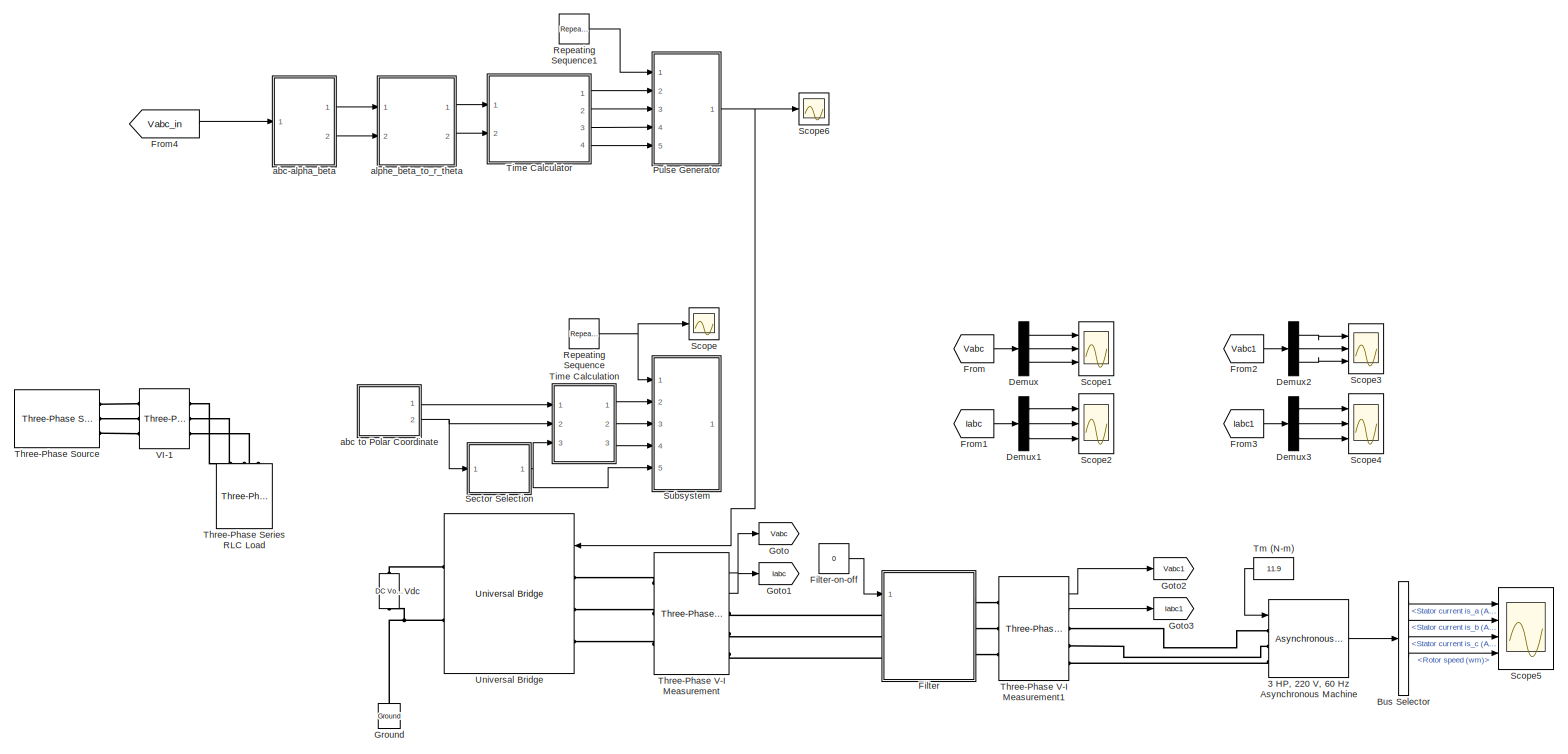
[diagram: root canvas - part 1/2, most of the canvas]
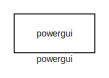
[diagram: root canvas - part 2/2, middle left region]
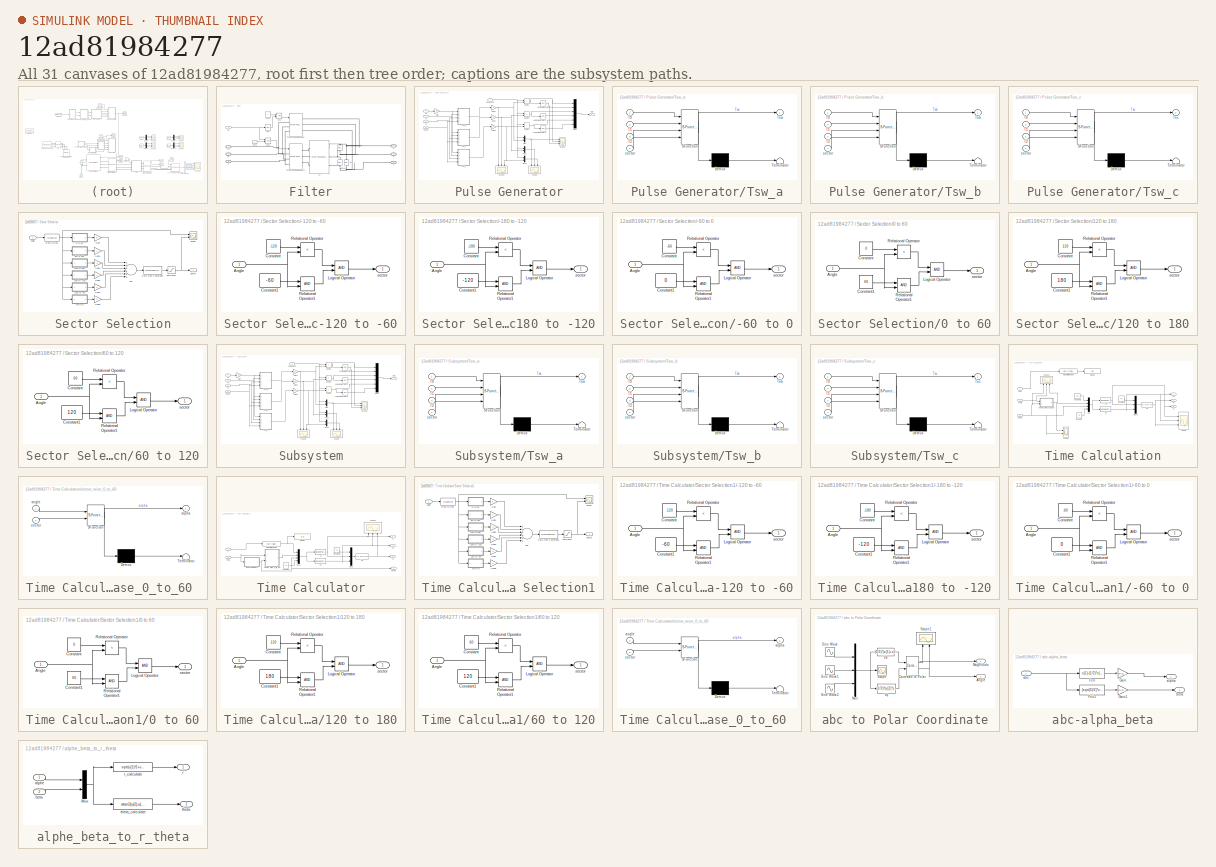
[diagram: thumbnail index - all 31 canvases of the model, root first then tree order]
MODEL slx_12ad81984277
KIND model
CONFIG AbsTol = auto
CONFIG EnableMultiTasking = off
CONFIG FixedStep = 1/252000
CONFIG MaxStep = 1e-4
CONFIG MinStep = auto
CONFIG RelTol = 1e-4
CONFIG SampleTimeConstraint = Unconstrained
CONFIG Solver = FixedStepAuto
CONFIG SolverName = FixedStepAuto
CONFIG StartTime = 0
CONFIG StopTime = 100e-3
BLOCK [Reference] 3 HP, 220 V, 60 Hz Asynchronous Machine  REF=powerlib/Machines/Asynchronous Machine
SI Units
  Ports = [1, 1, 0, 0, 0, 3]
  SourceBlock = powerlib/Machines/Asynchronous Machine\nSI Units
  SourceProductBaseCode = PS
  SourceProductName = Simscape Power Systems
  SourceType = Asynchronous Machine
BLOCK [BusSelector] Bus Selector
  OutputAsBus = off
  OutputSignals = Stator measurements.Stator current is_a (A),Stator measurements.Stator current is_b (A),Stator measurements.Stator current is_c (A),Mechanical.Rotor speed (wm),Mechanical.Electromagnetic torque Te (N*m)
  Ports = [1, 5]
BLOCK [Demux] Demux
  DisplayOption = bar
  Outputs = 3
  Ports = [1, 3]
BLOCK [Demux] Demux1
  DisplayOption = bar
  Outputs = 3
  Ports = [1, 3]
BLOCK [Demux] Demux2
  DisplayOption = bar
  Outputs = 3
  Ports = [1, 3]
BLOCK [Demux] Demux3
  DisplayOption = bar
  Outputs = 3
  Ports = [1, 3]
BLOCK [SubSystem] Filter
  Ports = [1, 0, 0, 0, 0, 3, 3]
  RequestExecContextInheritance = off
  Variant = off
BLOCK [Constant] Filter-on-off
  Value = 0
BLOCK [PMIOPort] Filter/A
  Port = 2
  Side = Left
BLOCK [PMIOPort] Filter/B
  Port = 3
  Side = Left
BLOCK [PMIOPort] Filter/C
  Port = 5
  Side = Left
BLOCK [Reference] Filter/C1  REF=powerlib/Elements/Series RLC Branch
  Ports = [0, 0, 0, 0, 0, 1, 1]
  SourceBlock = powerlib/Elements/Series RLC Branch
  SourceProductBaseCode = PS
  SourceProductName = Simscape Power Systems
  SourceType = Series RLC Branch
BLOCK [Reference] Filter/C2  REF=powerlib/Elements/Series RLC Branch
  Ports = [0, 0, 0, 0, 0, 1, 1]
  SourceBlock = powerlib/Elements/Series RLC Branch
  SourceProductBaseCode = PS
  SourceProductName = Simscape Power Systems
  SourceType = Series RLC Branch
BLOCK [Reference] Filter/C3  REF=powerlib/Elements/Series RLC Branch
  Ports = [0, 0, 0, 0, 0, 1, 1]
  SourceBlock = powerlib/Elements/Series RLC Branch
  SourceProductBaseCode = PS
  SourceProductName = Simscape Power Systems
  SourceType = Series RLC Branch
BLOCK [Constant] Filter/Con2
BLOCK [Constant] Filter/Con3
BLOCK [Inport] Filter/In1
  IconDisplay = Port number
BLOCK [Reference] Filter/L3  REF=powerlib/Elements/Three-Phase
Series RLC Branch
  AttributesFormatString = \n
  Ports = [0, 0, 0, 0, 0, 3, 3]
  SourceBlock = powerlib/Elements/Three-Phase\nSeries RLC Branch
  SourceProductBaseCode = PS
  SourceProductName = Simscape Power Systems
  SourceType = Three-Phase Series RLC Branch
BLOCK [Reference] Filter/Three-Phase Breaker  REF=powerlib/Elements/Three-Phase Breaker
  Ports = [1, 0, 0, 0, 0, 3, 3]
  SourceBlock = powerlib/Elements/Three-Phase Breaker
  SourceProductBaseCode = PS
  SourceProductName = Simscape Power Systems
  SourceType = Three-Phase Breaker
BLOCK [Reference] Filter/Three-Phase Breaker1  REF=powerlib/Elements/Three-Phase Breaker
  Ports = [1, 0, 0, 0, 0, 3, 3]
  SourceBlock = powerlib/Elements/Three-Phase Breaker
  SourceProductBaseCode = PS
  SourceProductName = Simscape Power Systems
  SourceType = Three-Phase Breaker
BLOCK [PMIOPort] Filter/a
  Port = 1
  Side = Right
BLOCK [Logic] Filter/and
  AllPortsSameDT = off
  OutDataTypeStr = boolean
  Ports = [2, 1]
BLOCK [Logic] Filter/and1
  AllPortsSameDT = off
  OutDataTypeStr = boolean
  Ports = [2, 1]
BLOCK [PMIOPort] Filter/b
  Port = 4
  Side = Right
BLOCK [PMIOPort] Filter/c
  Port = 6
  Side = Right
BLOCK [Logic] Filter/not
  AllPortsSameDT = off
  Operator = NOT
  OutDataTypeStr = boolean
  Ports = [1, 1]
BLOCK [From] From
  GotoTag = Vabc
BLOCK [From] From1
  GotoTag = Iabc
BLOCK [From] From2
  GotoTag = Vabc1
BLOCK [From] From3
  GotoTag = Iabc1
BLOCK [From] From4
  GotoTag = Vabc_in
  TagVisibility = global
BLOCK [Goto] Goto
  GotoTag = Vabc
BLOCK [Goto] Goto1
  GotoTag = Iabc
BLOCK [Goto] Goto2
  GotoTag = Vabc1
BLOCK [Goto] Goto3
  GotoTag = Iabc1
BLOCK [Reference] Ground  REF=powerlib/Elements/Ground
  Ports = [0, 0, 0, 0, 0, 1]
  SourceBlock = powerlib/Elements/Ground
  SourceProductBaseCode = PS
  SourceProductName = Simscape Power Systems
  SourceType = Ground
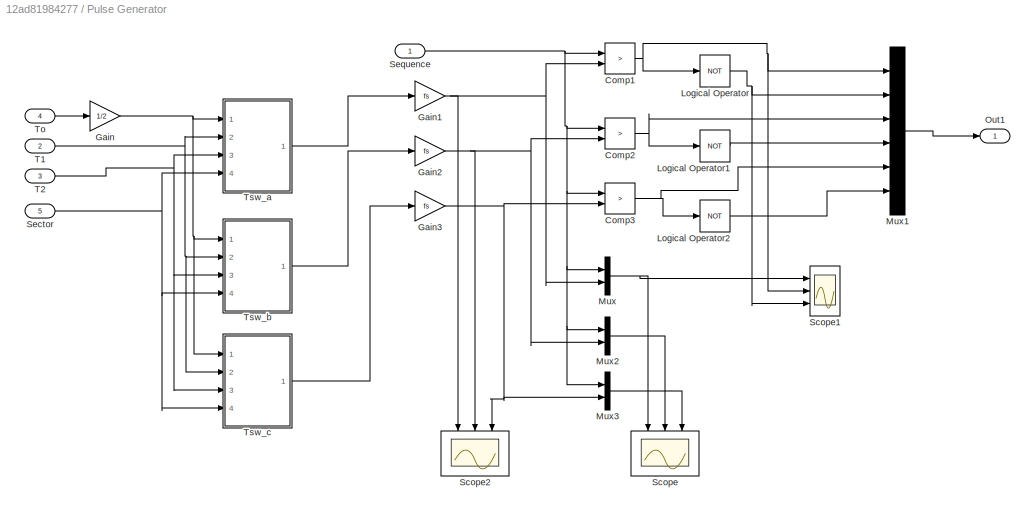
BLOCK [SubSystem] Pulse Generator
  Ports = [5, 1]
  RequestExecContextInheritance = off
  Variant = off
BLOCK [RelationalOperator] Pulse Generator/Comp1
  InputSameDT = off
  Operator = >
  OutDataTypeStr = boolean
  Ports = [2, 1]
  RndMeth = Simplest
BLOCK [RelationalOperator] Pulse Generator/Comp2
  InputSameDT = off
  Operator = >
  OutDataTypeStr = boolean
  Ports = [2, 1]
  RndMeth = Simplest
BLOCK [RelationalOperator] Pulse Generator/Comp3
  InputSameDT = off
  Operator = >
  OutDataTypeStr = boolean
  Ports = [2, 1]
  RndMeth = Simplest
BLOCK [Gain] Pulse Generator/Gain
  Gain = 1/2
  OutDataTypeStr = Inherit: Inherit via internal rule
  ParamDataTypeStr = Inherit: Inherit via internal rule
  SaturateOnIntegerOverflow = off
BLOCK [Gain] Pulse Generator/Gain1
  Gain = fs
  OutDataTypeStr = Inherit: Inherit via internal rule
  ParamDataTypeStr = Inherit: Inherit via internal rule
  SaturateOnIntegerOverflow = off
BLOCK [Gain] Pulse Generator/Gain2
  Gain = fs
  OutDataTypeStr = Inherit: Inherit via internal rule
  ParamDataTypeStr = Inherit: Inherit via internal rule
  SaturateOnIntegerOverflow = off
BLOCK [Gain] Pulse Generator/Gain3
  Gain = fs
  OutDataTypeStr = Inherit: Inherit via internal rule
  ParamDataTypeStr = Inherit: Inherit via internal rule
  SaturateOnIntegerOverflow = off
BLOCK [Logic] Pulse Generator/Logical Operator
  AllPortsSameDT = off
  Operator = NOT
  OutDataTypeStr = boolean
  Ports = [1, 1]
BLOCK [Logic] Pulse Generator/Logical Operator1
  AllPortsSameDT = off
  Operator = NOT
  OutDataTypeStr = boolean
  Ports = [1, 1]
BLOCK [Logic] Pulse Generator/Logical Operator2
  AllPortsSameDT = off
  Operator = NOT
  OutDataTypeStr = boolean
  Ports = [1, 1]
BLOCK [Mux] Pulse Generator/Mux
  DisplayOption = bar
  Inputs = 2
  Ports = [2, 1]
BLOCK [Mux] Pulse Generator/Mux1
  DisplayOption = bar
  Inputs = 6
  Ports = [6, 1]
BLOCK [Mux] Pulse Generator/Mux2
  DisplayOption = bar
  Inputs = 2
  Ports = [2, 1]
BLOCK [Mux] Pulse Generator/Mux3
  DisplayOption = bar
  Inputs = 2
  Ports = [2, 1]
BLOCK [Outport] Pulse Generator/Out1
  IconDisplay = Port number
BLOCK [Scope] Pulse Generator/Scope
  NumInputPorts = 3
  Ports = [3]
  ScopeSpecificationString = Simulink.scopes.TimeScopeBlockCfg('CurrentConfiguration', extmgr.ConfigurationSet(extmgr.Configuration('Core','General UI',true),extmgr.Configuration('Core','Source UI',true),extmgr.Configuration('Sources','WiredSimulink',true,'DataLoggingVariableName','ScopeData1'),extmgr.Configuration('Visuals','Time Domain',true,'SerializedDisplays',{struct('MinYLimReal','-0.08299','MaxYLimReal','0.99971','YLab...<+2790ch>
BLOCK [Scope] Pulse Generator/Scope1
  NumInputPorts = 3
  Ports = [3]
  ScopeSpecificationString = Simulink.scopes.TimeScopeBlockCfg('CurrentConfiguration', extmgr.ConfigurationSet(extmgr.Configuration('Core','General UI',true),extmgr.Configuration('Core','Source UI',true),extmgr.Configuration('Sources','WiredSimulink',true,'DataLoggingVariableName','ScopeData2'),extmgr.Configuration('Visuals','Time Domain',true,'SerializedDisplays',{struct('MinYLimReal','-0.12302','MaxYLimReal','1.10714','YLab...<+2748ch>
BLOCK [Scope] Pulse Generator/Scope2
  NumInputPorts = 3
  Ports = [3]
  ScopeSpecificationString = Simulink.scopes.TimeScopeBlockCfg('CurrentConfiguration', extmgr.ConfigurationSet(extmgr.Configuration('Core','General UI',true),extmgr.Configuration('Core','Source UI',true),extmgr.Configuration('Sources','WiredSimulink',true,'DataLoggingVariableName','ScopeData3'),extmgr.Configuration('Visuals','Time Domain',true,'SerializedDisplays',{struct('MinYLimReal','-0.05988','MaxYLimReal','1.05988','YLab...<+2738ch>
BLOCK [Inport] Pulse Generator/Sector
  IconDisplay = Port number
  Port = 5
BLOCK [Inport] Pulse Generator/Sequence
  IconDisplay = Port number
BLOCK [Inport] Pulse Generator/T1
  IconDisplay = Port number
  Port = 2
BLOCK [Inport] Pulse Generator/T2
  IconDisplay = Port number
  Port = 3
BLOCK [Inport] Pulse Generator/To
  IconDisplay = Port number
  Port = 4
BLOCK [SubSystem] Pulse Generator/Tsw_a
  ErrorFcn = Stateflow.Translate.translate
  PermitHierarchicalResolution = ExplicitOnly
  Ports = [4, 1]
  RequestExecContextInheritance = off
  SFBlockType = MATLAB Function
  TreatAsAtomicUnit = on
  Variant = off
BLOCK [Demux] Pulse Generator/Tsw_a/ Demux 
  Outputs = 1
  Ports = [1, 1]
BLOCK [S-Function] Pulse Generator/Tsw_a/ SFunction 
  EnableBusSupport = on
  FunctionName = sf_sfun
  PortCounts = [4 2]
  Ports = [4, 2]
  SFcnIsStateOwnerBlock = off
  SFunctionDeploymentMode = off
  Tag = Stateflow S-Function svpwm_v3 6
BLOCK [Terminator] Pulse Generator/Tsw_a/ Terminator 
BLOCK [Inport] Pulse Generator/Tsw_a/T0
  IconDisplay = Port number
BLOCK [Inport] Pulse Generator/Tsw_a/T1
  IconDisplay = Port number
  Port = 2
BLOCK [Inport] Pulse Generator/Tsw_a/T2
  IconDisplay = Port number
  Port = 3
BLOCK [Outport] Pulse Generator/Tsw_a/Tsa
  IconDisplay = Port number
BLOCK [Inport] Pulse Generator/Tsw_a/sector
  IconDisplay = Port number
  Port = 4
BLOCK [SubSystem] Pulse Generator/Tsw_b
  ErrorFcn = Stateflow.Translate.translate
  PermitHierarchicalResolution = ExplicitOnly
  Ports = [4, 1]
  RequestExecContextInheritance = off
  SFBlockType = MATLAB Function
  TreatAsAtomicUnit = on
  Variant = off
BLOCK [Demux] Pulse Generator/Tsw_b/ Demux 
  Outputs = 1
  Ports = [1, 1]
BLOCK [S-Function] Pulse Generator/Tsw_b/ SFunction 
  EnableBusSupport = on
  FunctionName = sf_sfun
  PortCounts = [4 2]
  Ports = [4, 2]
  SFcnIsStateOwnerBlock = off
  SFunctionDeploymentMode = off
  Tag = Stateflow S-Function svpwm_v3 7
BLOCK [Terminator] Pulse Generator/Tsw_b/ Terminator 
BLOCK [Inport] Pulse Generator/Tsw_b/T0
  IconDisplay = Port number
BLOCK [Inport] Pulse Generator/Tsw_b/T1
  IconDisplay = Port number
  Port = 2
BLOCK [Inport] Pulse Generator/Tsw_b/T2
  IconDisplay = Port number
  Port = 3
BLOCK [Outport] Pulse Generator/Tsw_b/Tsb
  IconDisplay = Port number
BLOCK [Inport] Pulse Generator/Tsw_b/sector
  IconDisplay = Port number
  Port = 4
BLOCK [SubSystem] Pulse Generator/Tsw_c
  ErrorFcn = Stateflow.Translate.translate
  PermitHierarchicalResolution = ExplicitOnly
  Ports = [4, 1]
  RequestExecContextInheritance = off
  SFBlockType = MATLAB Function
  TreatAsAtomicUnit = on
  Variant = off
BLOCK [Demux] Pulse Generator/Tsw_c/ Demux 
  Outputs = 1
  Ports = [1, 1]
BLOCK [S-Function] Pulse Generator/Tsw_c/ SFunction 
  EnableBusSupport = on
  FunctionName = sf_sfun
  PortCounts = [4 2]
  Ports = [4, 2]
  SFcnIsStateOwnerBlock = off
  SFunctionDeploymentMode = off
  Tag = Stateflow S-Function svpwm_v3 8
BLOCK [Terminator] Pulse Generator/Tsw_c/ Terminator 
BLOCK [Inport] Pulse Generator/Tsw_c/T0
  IconDisplay = Port number
BLOCK [Inport] Pulse Generator/Tsw_c/T1
  IconDisplay = Port number
  Port = 2
BLOCK [Inport] Pulse Generator/Tsw_c/T2
  IconDisplay = Port number
  Port = 3
BLOCK [Outport] Pulse Generator/Tsw_c/Tsc
  IconDisplay = Port number
BLOCK [Inport] Pulse Generator/Tsw_c/sector
  IconDisplay = Port number
  Port = 4
BLOCK [Reference] Repeating Sequence  REF=simulink/Sources/Repeating
Sequence
  Ports = [0, 1]
  SourceBlock = simulink/Sources/Repeating\nSequence
  SourceProductBaseCode = SL
  SourceProductName = Simulink
  SourceType = Repeating table
BLOCK [Reference] Repeating Sequence1  REF=simulink/Sources/Repeating
Sequence
  Ports = [0, 1]
  SourceBlock = simulink/Sources/Repeating\nSequence
  SourceProductBaseCode = SL
  SourceProductName = Simulink
  SourceType = Repeating table
BLOCK [Scope] Scope
  NumInputPorts = 1
  Ports = [1]
  ScopeSpecificationString = Simulink.scopes.TimeScopeBlockCfg('CurrentConfiguration', extmgr.ConfigurationSet(extmgr.Configuration('Core','General UI',true),extmgr.Configuration('Core','Source UI',true),extmgr.Configuration('Sources','WiredSimulink',true,'DataLoggingVariableName','ScopeData2'),extmgr.Configuration('Visuals','Time Domain',true,'SerializedDisplays',{struct('MinYLimReal','-0.12302','MaxYLimReal','1.10714','YLab...<+1404ch>
BLOCK [Scope] Scope1
  NumInputPorts = 3
  Ports = [3]
  ScopeSpecificationString = Simulink.scopes.TimeScopeBlockCfg('CurrentConfiguration', extmgr.ConfigurationSet(extmgr.Configuration('Core','General UI',true),extmgr.Configuration('Core','Source UI',true),extmgr.Configuration('Sources','WiredSimulink',true,'DataLoggingVariableName','ScopeData4'),extmgr.Configuration('Visuals','Time Domain',true,'SerializedDisplays',{struct('MinYLimReal','-679.93966','MaxYLimReal','406.73435','...<+2782ch>
BLOCK [Scope] Scope2
  NumInputPorts = 3
  Ports = [3]
  ScopeSpecificationString = Simulink.scopes.TimeScopeBlockCfg('CurrentConfiguration', extmgr.ConfigurationSet(extmgr.Configuration('Core','General UI',true),extmgr.Configuration('Core','Source UI',true),extmgr.Configuration('Sources','WiredSimulink',true,'DataLoggingVariableName','ScopeData5'),extmgr.Configuration('Visuals','Time Domain',true,'SerializedDisplays',{struct('MinYLimReal','-6656.18374','MaxYLimReal','2456.3583',...<+2773ch>
BLOCK [Scope] Scope3
  NumInputPorts = 3
  Ports = [3]
  ScopeSpecificationString = Simulink.scopes.TimeScopeBlockCfg('CurrentConfiguration', extmgr.ConfigurationSet(extmgr.Configuration('Core','General UI',true),extmgr.Configuration('Core','Source UI',true),extmgr.Configuration('Sources','WiredSimulink',true,'DataLoggingVariableName','ScopeData1'),extmgr.Configuration('Visuals','Time Domain',true,'SerializedDisplays',{struct('MinYLimReal','-1842.56393','MaxYLimReal','2409.35659'...<+2873ch>
BLOCK [Scope] Scope4
  NumInputPorts = 3
  Ports = [3]
  ScopeSpecificationString = Simulink.scopes.TimeScopeBlockCfg('CurrentConfiguration', extmgr.ConfigurationSet(extmgr.Configuration('Core','General UI',true),extmgr.Configuration('Core','Source UI',true),extmgr.Configuration('Sources','WiredSimulink',true,'DataLoggingVariableName','ScopeData2'),extmgr.Configuration('Visuals','Time Domain',true,'SerializedDisplays',{struct('MinYLimReal','-257.14572','MaxYLimReal','278.2944','Y...<+1451ch>
BLOCK [Scope] Scope5
  NumInputPorts = 4
  Ports = [4]
  ScopeSpecificationString = Simulink.scopes.TimeScopeBlockCfg('CurrentConfiguration', extmgr.ConfigurationSet(extmgr.Configuration('Core','General UI',true),extmgr.Configuration('Core','Source UI',true),extmgr.Configuration('Sources','WiredSimulink',true,'DataLoggingVariableName','ScopeData4'),extmgr.Configuration('Visuals','Time Domain',true,'SerializedDisplays',{struct('MinYLimReal','-356.03539','MaxYLimReal','201.76393','...<+3543ch>
BLOCK [Scope] Scope6
  NumInputPorts = 1
  Ports = [1]
  ScopeSpecificationString = Simulink.scopes.TimeScopeBlockCfg('CurrentConfiguration', extmgr.ConfigurationSet(extmgr.Configuration('Core','General UI',true),extmgr.Configuration('Core','Source UI',true),extmgr.Configuration('Sources','WiredSimulink',true,'DataLoggingVariableName','ScopeData1'),extmgr.Configuration('Visuals','Time Domain',true,'SerializedDisplays',{struct('MinYLimReal','-0.125','MaxYLimReal','1.125','YLabelRe...<+4988ch>
BLOCK [SubSystem] Sector Selection
  Ports = [1, 1]
  RequestExecContextInheritance = off
  Variant = off
BLOCK [SubSystem] Sector Selection/-120 to -60
  Ports = [1, 1]
  RequestExecContextInheritance = off
  Variant = off
BLOCK [Inport] Sector Selection/-120 to -60/Angle
  IconDisplay = Port number
BLOCK [Constant] Sector Selection/-120 to -60/Constant
  Value = -120
BLOCK [Constant] Sector Selection/-120 to -60/Constant1
  Value = -60
BLOCK [Logic] Sector Selection/-120 to -60/Logical Operator
  AllPortsSameDT = off
  OutDataTypeStr = boolean
  Ports = [2, 1]
BLOCK [RelationalOperator] Sector Selection/-120 to -60/Relational Operator
  InputSameDT = off
  Operator = <
  OutDataTypeStr = boolean
  Ports = [2, 1]
  RndMeth = Simplest
BLOCK [RelationalOperator] Sector Selection/-120 to -60/Relational Operator1
  InputSameDT = off
  OutDataTypeStr = boolean
  Ports = [2, 1]
  RndMeth = Simplest
BLOCK [Outport] Sector Selection/-120 to -60/sector
  IconDisplay = Port number
BLOCK [SubSystem] Sector Selection/-180 to -120
  Ports = [1, 1]
  RequestExecContextInheritance = off
  Variant = off
BLOCK [Inport] Sector Selection/-180 to -120/Angle
  IconDisplay = Port number
BLOCK [Constant] Sector Selection/-180 to -120/Constant
  Value = -180
BLOCK [Constant] Sector Selection/-180 to -120/Constant1
  Value = -120
BLOCK [Logic] Sector Selection/-180 to -120/Logical Operator
  AllPortsSameDT = off
  OutDataTypeStr = boolean
  Ports = [2, 1]
BLOCK [RelationalOperator] Sector Selection/-180 to -120/Relational Operator
  InputSameDT = off
  Operator = <
  OutDataTypeStr = boolean
  Ports = [2, 1]
  RndMeth = Simplest
BLOCK [RelationalOperator] Sector Selection/-180 to -120/Relational Operator1
  InputSameDT = off
  OutDataTypeStr = boolean
  Ports = [2, 1]
  RndMeth = Simplest
BLOCK [Outport] Sector Selection/-180 to -120/sector
  IconDisplay = Port number
BLOCK [SubSystem] Sector Selection/-60 to 0
  Ports = [1, 1]
  RequestExecContextInheritance = off
  Variant = off
BLOCK [Inport] Sector Selection/-60 to 0/Angle
  IconDisplay = Port number
BLOCK [Constant] Sector Selection/-60 to 0/Constant
  Value = -60
BLOCK [Constant] Sector Selection/-60 to 0/Constant1
  Value = 0
BLOCK [Logic] Sector Selection/-60 to 0/Logical Operator
  AllPortsSameDT = off
  OutDataTypeStr = boolean
  Ports = [2, 1]
BLOCK [RelationalOperator] Sector Selection/-60 to 0/Relational Operator
  InputSameDT = off
  Operator = <
  OutDataTypeStr = boolean
  Ports = [2, 1]
  RndMeth = Simplest
BLOCK [RelationalOperator] Sector Selection/-60 to 0/Relational Operator1
  InputSameDT = off
  OutDataTypeStr = boolean
  Ports = [2, 1]
  RndMeth = Simplest
BLOCK [Outport] Sector Selection/-60 to 0/sector
  IconDisplay = Port number
BLOCK [SubSystem] Sector Selection/0 to 60
  Ports = [1, 1]
  RequestExecContextInheritance = off
  Variant = off
BLOCK [Inport] Sector Selection/0 to 60/Angle
  IconDisplay = Port number
BLOCK [Constant] Sector Selection/0 to 60/Constant
  Value = 0
BLOCK [Constant] Sector Selection/0 to 60/Constant1
  Value = 60
BLOCK [Logic] Sector Selection/0 to 60/Logical Operator
  AllPortsSameDT = off
  OutDataTypeStr = boolean
  Ports = [2, 1]
BLOCK [RelationalOperator] Sector Selection/0 to 60/Relational Operator
  InputSameDT = off
  Operator = <
  OutDataTypeStr = boolean
  Ports = [2, 1]
  RndMeth = Simplest
BLOCK [RelationalOperator] Sector Selection/0 to 60/Relational Operator1
  InputSameDT = off
  OutDataTypeStr = boolean
  Ports = [2, 1]
  RndMeth = Simplest
BLOCK [Outport] Sector Selection/0 to 60/sector
  IconDisplay = Port number
BLOCK [SubSystem] Sector Selection/120 to 180
  Ports = [1, 1]
  RequestExecContextInheritance = off
  Variant = off
BLOCK [Inport] Sector Selection/120 to 180/Angle
  IconDisplay = Port number
BLOCK [Constant] Sector Selection/120 to 180/Constant
  Value = 120
BLOCK [Constant] Sector Selection/120 to 180/Constant1
  Value = 180
BLOCK [Logic] Sector Selection/120 to 180/Logical Operator
  AllPortsSameDT = off
  OutDataTypeStr = boolean
  Ports = [2, 1]
BLOCK [RelationalOperator] Sector Selection/120 to 180/Relational Operator
  InputSameDT = off
  Operator = <
  OutDataTypeStr = boolean
  Ports = [2, 1]
  RndMeth = Simplest
BLOCK [RelationalOperator] Sector Selection/120 to 180/Relational Operator1
  InputSameDT = off
  OutDataTypeStr = boolean
  Ports = [2, 1]
  RndMeth = Simplest
BLOCK [Outport] Sector Selection/120 to 180/sector
  IconDisplay = Port number
BLOCK [SubSystem] Sector Selection/60 to 120
  Ports = [1, 1]
  RequestExecContextInheritance = off
  Variant = off
BLOCK [Inport] Sector Selection/60 to 120/Angle
  IconDisplay = Port number
BLOCK [Constant] Sector Selection/60 to 120/Constant
  Value = 60
BLOCK [Constant] Sector Selection/60 to 120/Constant1
  Value = 120
BLOCK [Logic] Sector Selection/60 to 120/Logical Operator
  AllPortsSameDT = off
  OutDataTypeStr = boolean
  Ports = [2, 1]
BLOCK [RelationalOperator] Sector Selection/60 to 120/Relational Operator
  InputSameDT = off
  Operator = <
  OutDataTypeStr = boolean
  Ports = [2, 1]
  RndMeth = Simplest
BLOCK [RelationalOperator] Sector Selection/60 to 120/Relational Operator1
  InputSameDT = off
  OutDataTypeStr = boolean
  Ports = [2, 1]
  RndMeth = Simplest
BLOCK [Outport] Sector Selection/60 to 120/sector
  IconDisplay = Port number
BLOCK [Sum] Sector Selection/Add
  InputSameDT = off
  Inputs = ++++++
  OutDataTypeStr = Inherit: Inherit via internal rule
  Ports = [6, 1]
  SaturateOnIntegerOverflow = off
BLOCK [Inport] Sector Selection/Angle
  IconDisplay = Port number
BLOCK [DataTypeConversion] Sector Selection/Data Type Conversion
  RndMeth = Floor
  SaturateOnIntegerOverflow = off
BLOCK [Gain] Sector Selection/Gain
  OutDataTypeStr = Inherit: Inherit via internal rule
  ParamDataTypeStr = Inherit: Inherit via internal rule
  SaturateOnIntegerOverflow = off
BLOCK [Gain] Sector Selection/Gain1
  Gain = 2
  OutDataTypeStr = Inherit: Inherit via internal rule
  ParamDataTypeStr = Inherit: Inherit via internal rule
  SaturateOnIntegerOverflow = off
BLOCK [Gain] Sector Selection/Gain2
  Gain = 3
  OutDataTypeStr = Inherit: Inherit via internal rule
  ParamDataTypeStr = Inherit: Inherit via internal rule
  SaturateOnIntegerOverflow = off
BLOCK [Gain] Sector Selection/Gain3
  Gain = 4
  OutDataTypeStr = Inherit: Inherit via internal rule
  ParamDataTypeStr = Inherit: Inherit via internal rule
  SaturateOnIntegerOverflow = off
BLOCK [Gain] Sector Selection/Gain4
  Gain = 5
  OutDataTypeStr = Inherit: Inherit via internal rule
  ParamDataTypeStr = Inherit: Inherit via internal rule
  SaturateOnIntegerOverflow = off
BLOCK [Gain] Sector Selection/Gain5
  Gain = 6
  OutDataTypeStr = Inherit: Inherit via internal rule
  ParamDataTypeStr = Inherit: Inherit via internal rule
  SaturateOnIntegerOverflow = off
BLOCK [Fcn] Sector Selection/Rad to Deg
  Expr = (u*180)/pi
BLOCK [Saturate] Sector Selection/Saturation
  InputPortMap = u0
  LowerLimit = 1
  Ports = [1, 1]
  UpperLimit = 6
BLOCK [Scope] Sector Selection/Scope
  NumInputPorts = 2
  Ports = [2]
  ScopeSpecificationString = Simulink.scopes.TimeScopeBlockCfg('CurrentConfiguration', extmgr.ConfigurationSet(extmgr.Configuration('Core','General UI',true),extmgr.Configuration('Core','Source UI',true),extmgr.Configuration('Sources','WiredSimulink',true,'DataLoggingVariableName','ScopeData2'),extmgr.Configuration('Visuals','Time Domain',true,'SerializedDisplays',{struct('MinYLimReal','-224.99107','MaxYLimReal','224.91964','...<+2072ch>
BLOCK [Outport] Sector Selection/Sector
  IconDisplay = Port number
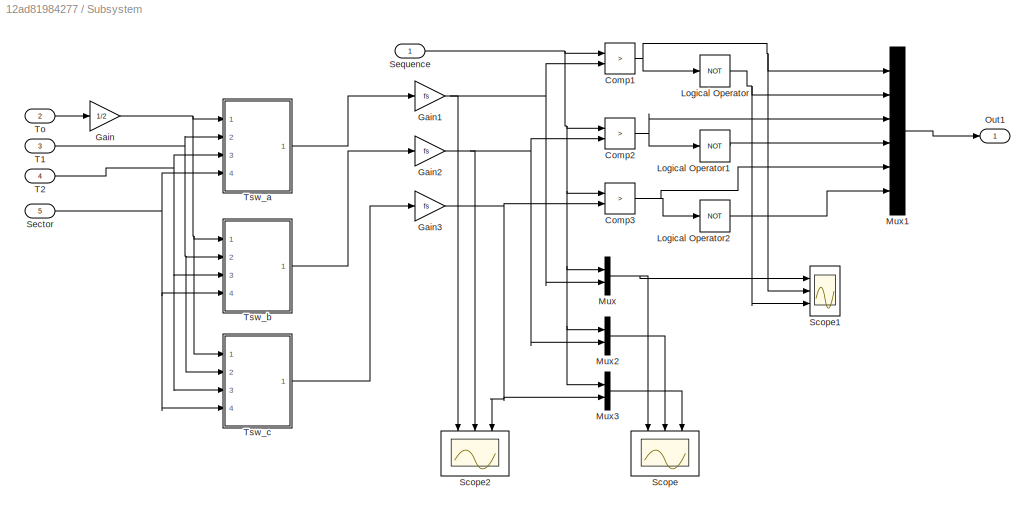
BLOCK [SubSystem] Subsystem
  Ports = [5, 1]
  RequestExecContextInheritance = off
  Variant = off
BLOCK [RelationalOperator] Subsystem/Comp1
  InputSameDT = off
  Operator = >
  OutDataTypeStr = boolean
  Ports = [2, 1]
  RndMeth = Simplest
BLOCK [RelationalOperator] Subsystem/Comp2
  InputSameDT = off
  Operator = >
  OutDataTypeStr = boolean
  Ports = [2, 1]
  RndMeth = Simplest
BLOCK [RelationalOperator] Subsystem/Comp3
  InputSameDT = off
  Operator = >
  OutDataTypeStr = boolean
  Ports = [2, 1]
  RndMeth = Simplest
BLOCK [Gain] Subsystem/Gain
  Gain = 1/2
  OutDataTypeStr = Inherit: Inherit via internal rule
  ParamDataTypeStr = Inherit: Inherit via internal rule
  SaturateOnIntegerOverflow = off
BLOCK [Gain] Subsystem/Gain1
  Gain = fs
  OutDataTypeStr = Inherit: Inherit via internal rule
  ParamDataTypeStr = Inherit: Inherit via internal rule
  SaturateOnIntegerOverflow = off
BLOCK [Gain] Subsystem/Gain2
  Gain = fs
  OutDataTypeStr = Inherit: Inherit via internal rule
  ParamDataTypeStr = Inherit: Inherit via internal rule
  SaturateOnIntegerOverflow = off
BLOCK [Gain] Subsystem/Gain3
  Gain = fs
  OutDataTypeStr = Inherit: Inherit via internal rule
  ParamDataTypeStr = Inherit: Inherit via internal rule
  SaturateOnIntegerOverflow = off
BLOCK [Logic] Subsystem/Logical Operator
  AllPortsSameDT = off
  Operator = NOT
  OutDataTypeStr = boolean
  Ports = [1, 1]
BLOCK [Logic] Subsystem/Logical Operator1
  AllPortsSameDT = off
  Operator = NOT
  OutDataTypeStr = boolean
  Ports = [1, 1]
BLOCK [Logic] Subsystem/Logical Operator2
  AllPortsSameDT = off
  Operator = NOT
  OutDataTypeStr = boolean
  Ports = [1, 1]
BLOCK [Mux] Subsystem/Mux
  DisplayOption = bar
  Inputs = 2
  Ports = [2, 1]
BLOCK [Mux] Subsystem/Mux1
  DisplayOption = bar
  Inputs = 6
  Ports = [6, 1]
BLOCK [Mux] Subsystem/Mux2
  DisplayOption = bar
  Inputs = 2
  Ports = [2, 1]
BLOCK [Mux] Subsystem/Mux3
  DisplayOption = bar
  Inputs = 2
  Ports = [2, 1]
BLOCK [Outport] Subsystem/Out1
  IconDisplay = Port number
BLOCK [Scope] Subsystem/Scope
  NumInputPorts = 3
  Ports = [3]
  ScopeSpecificationString = Simulink.scopes.TimeScopeBlockCfg('CurrentConfiguration', extmgr.ConfigurationSet(extmgr.Configuration('Core','General UI',true),extmgr.Configuration('Core','Source UI',true),extmgr.Configuration('Sources','WiredSimulink',true,'DataLoggingVariableName','ScopeData1'),extmgr.Configuration('Visuals','Time Domain',true,'SerializedDisplays',{struct('MinYLimReal','-0.12302','MaxYLimReal','1.10714','YLab...<+2771ch>
BLOCK [Scope] Subsystem/Scope1
  NumInputPorts = 3
  Ports = [3]
  ScopeSpecificationString = Simulink.scopes.TimeScopeBlockCfg('CurrentConfiguration', extmgr.ConfigurationSet(extmgr.Configuration('Core','General UI',true),extmgr.Configuration('Core','Source UI',true),extmgr.Configuration('Sources','WiredSimulink',true,'DataLoggingVariableName','ScopeData2'),extmgr.Configuration('Visuals','Time Domain',true,'SerializedDisplays',{struct('MinYLimReal','-0.12302','MaxYLimReal','1.10714','YLab...<+2748ch>
BLOCK [Scope] Subsystem/Scope2
  NumInputPorts = 3
  Ports = [3]
  ScopeSpecificationString = Simulink.scopes.TimeScopeBlockCfg('CurrentConfiguration', extmgr.ConfigurationSet(extmgr.Configuration('Core','General UI',true),extmgr.Configuration('Core','Source UI',true),extmgr.Configuration('Sources','WiredSimulink',true,'DataLoggingVariableName','ScopeData3'),extmgr.Configuration('Visuals','Time Domain',true,'SerializedDisplays',{struct('MinYLimReal','-0.07735','MaxYLimReal','1.07735','YLab...<+2738ch>
BLOCK [Inport] Subsystem/Sector
  IconDisplay = Port number
  Port = 5
BLOCK [Inport] Subsystem/Sequence
  IconDisplay = Port number
BLOCK [Inport] Subsystem/T1
  IconDisplay = Port number
  Port = 3
BLOCK [Inport] Subsystem/T2
  IconDisplay = Port number
  Port = 4
BLOCK [Inport] Subsystem/To
  IconDisplay = Port number
  Port = 2
BLOCK [SubSystem] Subsystem/Tsw_a
  ErrorFcn = Stateflow.Translate.translate
  PermitHierarchicalResolution = ExplicitOnly
  Ports = [4, 1]
  RequestExecContextInheritance = off
  SFBlockType = MATLAB Function
  TreatAsAtomicUnit = on
  Variant = off
BLOCK [Demux] Subsystem/Tsw_a/ Demux 
  Outputs = 1
  Ports = [1, 1]
BLOCK [S-Function] Subsystem/Tsw_a/ SFunction 
  EnableBusSupport = on
  FunctionName = sf_sfun
  PortCounts = [4 2]
  Ports = [4, 2]
  SFcnIsStateOwnerBlock = off
  SFunctionDeploymentMode = off
  Tag = Stateflow S-Function svpwm_v3 1
BLOCK [Terminator] Subsystem/Tsw_a/ Terminator 
BLOCK [Inport] Subsystem/Tsw_a/T0
  IconDisplay = Port number
BLOCK [Inport] Subsystem/Tsw_a/T1
  IconDisplay = Port number
  Port = 2
BLOCK [Inport] Subsystem/Tsw_a/T2
  IconDisplay = Port number
  Port = 3
BLOCK [Outport] Subsystem/Tsw_a/Tsa
  IconDisplay = Port number
BLOCK [Inport] Subsystem/Tsw_a/sector
  IconDisplay = Port number
  Port = 4
BLOCK [SubSystem] Subsystem/Tsw_b
  ErrorFcn = Stateflow.Translate.translate
  PermitHierarchicalResolution = ExplicitOnly
  Ports = [4, 1]
  RequestExecContextInheritance = off
  SFBlockType = MATLAB Function
  TreatAsAtomicUnit = on
  Variant = off
BLOCK [Demux] Subsystem/Tsw_b/ Demux 
  Outputs = 1
  Ports = [1, 1]
BLOCK [S-Function] Subsystem/Tsw_b/ SFunction 
  EnableBusSupport = on
  FunctionName = sf_sfun
  PortCounts = [4 2]
  Ports = [4, 2]
  SFcnIsStateOwnerBlock = off
  SFunctionDeploymentMode = off
  Tag = Stateflow S-Function svpwm_v3 3
BLOCK [Terminator] Subsystem/Tsw_b/ Terminator 
BLOCK [Inport] Subsystem/Tsw_b/T0
  IconDisplay = Port number
BLOCK [Inport] Subsystem/Tsw_b/T1
  IconDisplay = Port number
  Port = 2
BLOCK [Inport] Subsystem/Tsw_b/T2
  IconDisplay = Port number
  Port = 3
BLOCK [Outport] Subsystem/Tsw_b/Tsb
  IconDisplay = Port number
BLOCK [Inport] Subsystem/Tsw_b/sector
  IconDisplay = Port number
  Port = 4
BLOCK [SubSystem] Subsystem/Tsw_c
  ErrorFcn = Stateflow.Translate.translate
  PermitHierarchicalResolution = ExplicitOnly
  Ports = [4, 1]
  RequestExecContextInheritance = off
  SFBlockType = MATLAB Function
  TreatAsAtomicUnit = on
  Variant = off
BLOCK [Demux] Subsystem/Tsw_c/ Demux 
  Outputs = 1
  Ports = [1, 1]
BLOCK [S-Function] Subsystem/Tsw_c/ SFunction 
  EnableBusSupport = on
  FunctionName = sf_sfun
  PortCounts = [4 2]
  Ports = [4, 2]
  SFcnIsStateOwnerBlock = off
  SFunctionDeploymentMode = off
  Tag = Stateflow S-Function svpwm_v3 4
BLOCK [Terminator] Subsystem/Tsw_c/ Terminator 
BLOCK [Inport] Subsystem/Tsw_c/T0
  IconDisplay = Port number
BLOCK [Inport] Subsystem/Tsw_c/T1
  IconDisplay = Port number
  Port = 2
BLOCK [Inport] Subsystem/Tsw_c/T2
  IconDisplay = Port number
  Port = 3
BLOCK [Outport] Subsystem/Tsw_c/Tsc
  IconDisplay = Port number
BLOCK [Inport] Subsystem/Tsw_c/sector
  IconDisplay = Port number
  Port = 4
BLOCK [Reference] Three-Phase Series RLC Load  REF=powerlib/Elements/Three-Phase
Series RLC Load
  AttributesFormatString = \n
  Ports = [0, 0, 0, 0, 0, 3]
  SourceBlock = powerlib/Elements/Three-Phase\nSeries RLC Load
  SourceProductBaseCode = PS
  SourceProductName = Simscape Power Systems
  SourceType = Three-Phase Series RLC Load
BLOCK [Reference] Three-Phase Source  REF=powerlib/Electrical
Sources/Three-Phase Source
  Ports = [0, 0, 0, 0, 0, 0, 3]
  SourceBlock = powerlib/Electrical\nSources/Three-Phase Source
  SourceProductBaseCode = PS
  SourceProductName = Simscape Power Systems
  SourceType = Three-Phase Source
BLOCK [Reference] Three-Phase V-I Measurement  REF=powerlib/Measurements/Three-Phase
V-I Measurement
  Ports = [0, 2, 0, 0, 0, 3, 3]
  SourceBlock = powerlib/Measurements/Three-Phase\nV-I Measurement
  SourceProductBaseCode = PS
  SourceProductName = Simscape Power Systems
  SourceType = Three-Phase VI Measurement
BLOCK [Reference] Three-Phase V-I Measurement1  REF=powerlib/Measurements/Three-Phase
V-I Measurement
  Ports = [0, 2, 0, 0, 0, 3, 3]
  SourceBlock = powerlib/Measurements/Three-Phase\nV-I Measurement
  SourceProductBaseCode = PS
  SourceProductName = Simscape Power Systems
  SourceType = Three-Phase VI Measurement
BLOCK [SubSystem] Time Calculation
  Ports = [3, 3]
  RequestExecContextInheritance = off
  Variant = off
BLOCK [Inport] Time Calculation/Angle
  IconDisplay = Port number
  Port = 2
BLOCK [Constant] Time Calculation/Constant
  Value = Ts
BLOCK [Constant] Time Calculation/Constant1
  Value = Ts
BLOCK [Constant] Time Calculation/Constant2
  Value = 0.8
BLOCK [Display] Time Calculation/Display
  Decimation = 1
  Ports = [1]
BLOCK [Inport] Time Calculation/Mag
  IconDisplay = Port number
BLOCK [Mux] Time Calculation/Mux
  DisplayOption = bar
  Ports = [4, 1]
BLOCK [Mux] Time Calculation/Mux1
  DisplayOption = bar
  Inputs = 3
  Ports = [3, 1]
BLOCK [Scope] Time Calculation/Scope
  NumInputPorts = 3
  Ports = [3]
  ScopeSpecificationString = Simulink.scopes.TimeScopeBlockCfg('CurrentConfiguration', extmgr.ConfigurationSet(extmgr.Configuration('Core','General UI',true),extmgr.Configuration('Core','Source UI',true),extmgr.Configuration('Sources','WiredSimulink',true,'DataLoggingVariableName','ScopeData1'),extmgr.Configuration('Visuals','Time Domain',true,'SerializedDisplays',{struct('MinYLimReal','-0.00025','MaxYLimReal','0.00025','YLab...<+2756ch>
BLOCK [Scope] Time Calculation/Scope1
  NumInputPorts = 2
  Ports = [2]
  ScopeSpecificationString = Simulink.scopes.TimeScopeBlockCfg('CurrentConfiguration', extmgr.ConfigurationSet(extmgr.Configuration('Core','General UI',true),extmgr.Configuration('Core','Source UI',true),extmgr.Configuration('Sources','WiredSimulink',true,'DataLoggingVariableName','ScopeData1'),extmgr.Configuration('Visuals','Time Domain',true,'SerializedDisplays',{struct('MinYLimReal','-3.66519','MaxYLimReal','1.5708','YLabe...<+2069ch>
BLOCK [Scope] Time Calculation/Scope2
  NumInputPorts = 3
  Ports = [3]
  ScopeSpecificationString = Simulink.scopes.TimeScopeBlockCfg('CurrentConfiguration', extmgr.ConfigurationSet(extmgr.Configuration('Core','General UI',true),extmgr.Configuration('Core','Source UI',true),extmgr.Configuration('Sources','WiredSimulink',true,'DataLoggingVariableName','ScopeData1'),extmgr.Configuration('Visuals','Time Domain',true,'SerializedDisplays',{struct('MinYLimReal','0.375','MaxYLimReal','6.625','YLabelRea...<+2768ch>
BLOCK [Inport] Time Calculation/Sector
  IconDisplay = Port number
  Port = 3
BLOCK [Fcn] Time Calculation/T0
  Expr = u(1)-u(2)-u(3)
BLOCK [Outport] Time Calculation/T1
  IconDisplay = Port number
  Port = 2
BLOCK [Outport] Time Calculation/T2
  IconDisplay = Port number
  Port = 3
BLOCK [Fcn] Time Calculation/Ta
  Expr = u[1]*u[4]*sin(pi/3-u[2])/sin(pi/3)
BLOCK [Fcn] Time Calculation/Tb
  Expr = u[1]*u[4]*sin(u[2])/sin(pi/3)
BLOCK [Outport] Time Calculation/To
  IconDisplay = Port number
BLOCK [Fcn] Time Calculation/modulation Index
  Expr = (3/2)*(Vref/Vdc)
BLOCK [SubSystem] Time Calculation/sector_wise_0_to_60 
  ErrorFcn = Stateflow.Translate.translate
  PermitHierarchicalResolution = ExplicitOnly
  Ports = [2, 1]
  RequestExecContextInheritance = off
  SFBlockType = MATLAB Function
  TreatAsAtomicUnit = on
  Variant = off
BLOCK [Demux] Time Calculation/sector_wise_0_to_60 / Demux 
  Outputs = 1
  Ports = [1, 1]
BLOCK [S-Function] Time Calculation/sector_wise_0_to_60 / SFunction 
  EnableBusSupport = on
  FunctionName = sf_sfun
  PortCounts = [2 2]
  Ports = [2, 2]
  SFcnIsStateOwnerBlock = off
  SFunctionDeploymentMode = off
  Tag = Stateflow S-Function svpwm_v3 2
BLOCK [Terminator] Time Calculation/sector_wise_0_to_60 / Terminator 
BLOCK [Outport] Time Calculation/sector_wise_0_to_60 /alpha
  IconDisplay = Port number
BLOCK [Inport] Time Calculation/sector_wise_0_to_60 /angle
  IconDisplay = Port number
BLOCK [Inport] Time Calculation/sector_wise_0_to_60 /sector
  IconDisplay = Port number
  Port = 2
BLOCK [SubSystem] Time Calculator
  Ports = [2, 4]
  RequestExecContextInheritance = off
  Variant = off
BLOCK [Constant] Time Calculator/Constant
  Value = Ts
BLOCK [Constant] Time Calculator/Constant1
  Value = Ts
BLOCK [Display] Time Calculator/Display
  Decimation = 1
  Ports = [1]
BLOCK [Mux] Time Calculator/Mux1
  DisplayOption = bar
  Ports = [4, 1]
BLOCK [Mux] Time Calculator/Mux2
  DisplayOption = bar
  Inputs = 3
  Ports = [3, 1]
BLOCK [Scope] Time Calculator/Scope7
  NumInputPorts = 3
  Ports = [3]
  ScopeSpecificationString = Simulink.scopes.TimeScopeBlockCfg('CurrentConfiguration', extmgr.ConfigurationSet(extmgr.Configuration('Core','General UI',true),extmgr.Configuration('Core','Source UI',true),extmgr.Configuration('Sources','WiredSimulink',true,'DataLoggingVariableName','ScopeData2'),extmgr.Configuration('Visuals','Time Domain',true,'SerializedDisplays',{struct('MinYLimReal','-0.00002','MaxYLimReal','0.00022','YLab...<+2757ch>
BLOCK [SubSystem] Time Calculator/Sector Selection1
  Ports = [1, 1]
  RequestExecContextInheritance = off
  Variant = off
BLOCK [SubSystem] Time Calculator/Sector Selection1/-120 to -60
  Ports = [1, 1]
  RequestExecContextInheritance = off
  Variant = off
BLOCK [Inport] Time Calculator/Sector Selection1/-120 to -60/Angle
  IconDisplay = Port number
BLOCK [Constant] Time Calculator/Sector Selection1/-120 to -60/Constant
  Value = -120
BLOCK [Constant] Time Calculator/Sector Selection1/-120 to -60/Constant1
  Value = -60
BLOCK [Logic] Time Calculator/Sector Selection1/-120 to -60/Logical Operator
  AllPortsSameDT = off
  OutDataTypeStr = boolean
  Ports = [2, 1]
BLOCK [RelationalOperator] Time Calculator/Sector Selection1/-120 to -60/Relational Operator
  InputSameDT = off
  Operator = <
  OutDataTypeStr = boolean
  Ports = [2, 1]
  RndMeth = Simplest
BLOCK [RelationalOperator] Time Calculator/Sector Selection1/-120 to -60/Relational Operator1
  InputSameDT = off
  OutDataTypeStr = boolean
  Ports = [2, 1]
  RndMeth = Simplest
BLOCK [Outport] Time Calculator/Sector Selection1/-120 to -60/sector
  IconDisplay = Port number
BLOCK [SubSystem] Time Calculator/Sector Selection1/-180 to -120
  Ports = [1, 1]
  RequestExecContextInheritance = off
  Variant = off
BLOCK [Inport] Time Calculator/Sector Selection1/-180 to -120/Angle
  IconDisplay = Port number
BLOCK [Constant] Time Calculator/Sector Selection1/-180 to -120/Constant
  Value = -180
BLOCK [Constant] Time Calculator/Sector Selection1/-180 to -120/Constant1
  Value = -120
BLOCK [Logic] Time Calculator/Sector Selection1/-180 to -120/Logical Operator
  AllPortsSameDT = off
  OutDataTypeStr = boolean
  Ports = [2, 1]
BLOCK [RelationalOperator] Time Calculator/Sector Selection1/-180 to -120/Relational Operator
  InputSameDT = off
  Operator = <
  OutDataTypeStr = boolean
  Ports = [2, 1]
  RndMeth = Simplest
BLOCK [RelationalOperator] Time Calculator/Sector Selection1/-180 to -120/Relational Operator1
  InputSameDT = off
  OutDataTypeStr = boolean
  Ports = [2, 1]
  RndMeth = Simplest
BLOCK [Outport] Time Calculator/Sector Selection1/-180 to -120/sector
  IconDisplay = Port number
BLOCK [SubSystem] Time Calculator/Sector Selection1/-60 to 0
  Ports = [1, 1]
  RequestExecContextInheritance = off
  Variant = off
BLOCK [Inport] Time Calculator/Sector Selection1/-60 to 0/Angle
  IconDisplay = Port number
BLOCK [Constant] Time Calculator/Sector Selection1/-60 to 0/Constant
  Value = -60
BLOCK [Constant] Time Calculator/Sector Selection1/-60 to 0/Constant1
  Value = 0
BLOCK [Logic] Time Calculator/Sector Selection1/-60 to 0/Logical Operator
  AllPortsSameDT = off
  OutDataTypeStr = boolean
  Ports = [2, 1]
BLOCK [RelationalOperator] Time Calculator/Sector Selection1/-60 to 0/Relational Operator
  InputSameDT = off
  Operator = <
  OutDataTypeStr = boolean
  Ports = [2, 1]
  RndMeth = Simplest
BLOCK [RelationalOperator] Time Calculator/Sector Selection1/-60 to 0/Relational Operator1
  InputSameDT = off
  OutDataTypeStr = boolean
  Ports = [2, 1]
  RndMeth = Simplest
BLOCK [Outport] Time Calculator/Sector Selection1/-60 to 0/sector
  IconDisplay = Port number
BLOCK [SubSystem] Time Calculator/Sector Selection1/0 to 60
  Ports = [1, 1]
  RequestExecContextInheritance = off
  Variant = off
BLOCK [Inport] Time Calculator/Sector Selection1/0 to 60/Angle
  IconDisplay = Port number
BLOCK [Constant] Time Calculator/Sector Selection1/0 to 60/Constant
  Value = 0
BLOCK [Constant] Time Calculator/Sector Selection1/0 to 60/Constant1
  Value = 60
BLOCK [Logic] Time Calculator/Sector Selection1/0 to 60/Logical Operator
  AllPortsSameDT = off
  OutDataTypeStr = boolean
  Ports = [2, 1]
BLOCK [RelationalOperator] Time Calculator/Sector Selection1/0 to 60/Relational Operator
  InputSameDT = off
  Operator = <
  OutDataTypeStr = boolean
  Ports = [2, 1]
  RndMeth = Simplest
BLOCK [RelationalOperator] Time Calculator/Sector Selection1/0 to 60/Relational Operator1
  InputSameDT = off
  OutDataTypeStr = boolean
  Ports = [2, 1]
  RndMeth = Simplest
BLOCK [Outport] Time Calculator/Sector Selection1/0 to 60/sector
  IconDisplay = Port number
BLOCK [SubSystem] Time Calculator/Sector Selection1/120 to 180
  Ports = [1, 1]
  RequestExecContextInheritance = off
  Variant = off
BLOCK [Inport] Time Calculator/Sector Selection1/120 to 180/Angle
  IconDisplay = Port number
BLOCK [Constant] Time Calculator/Sector Selection1/120 to 180/Constant
  Value = 120
BLOCK [Constant] Time Calculator/Sector Selection1/120 to 180/Constant1
  Value = 180
BLOCK [Logic] Time Calculator/Sector Selection1/120 to 180/Logical Operator
  AllPortsSameDT = off
  OutDataTypeStr = boolean
  Ports = [2, 1]
BLOCK [RelationalOperator] Time Calculator/Sector Selection1/120 to 180/Relational Operator
  InputSameDT = off
  Operator = <
  OutDataTypeStr = boolean
  Ports = [2, 1]
  RndMeth = Simplest
BLOCK [RelationalOperator] Time Calculator/Sector Selection1/120 to 180/Relational Operator1
  InputSameDT = off
  OutDataTypeStr = boolean
  Ports = [2, 1]
  RndMeth = Simplest
BLOCK [Outport] Time Calculator/Sector Selection1/120 to 180/sector
  IconDisplay = Port number
BLOCK [SubSystem] Time Calculator/Sector Selection1/60 to 120
  Ports = [1, 1]
  RequestExecContextInheritance = off
  Variant = off
BLOCK [Inport] Time Calculator/Sector Selection1/60 to 120/Angle
  IconDisplay = Port number
BLOCK [Constant] Time Calculator/Sector Selection1/60 to 120/Constant
  Value = 60
BLOCK [Constant] Time Calculator/Sector Selection1/60 to 120/Constant1
  Value = 120
BLOCK [Logic] Time Calculator/Sector Selection1/60 to 120/Logical Operator
  AllPortsSameDT = off
  OutDataTypeStr = boolean
  Ports = [2, 1]
BLOCK [RelationalOperator] Time Calculator/Sector Selection1/60 to 120/Relational Operator
  InputSameDT = off
  Operator = <
  OutDataTypeStr = boolean
  Ports = [2, 1]
  RndMeth = Simplest
BLOCK [RelationalOperator] Time Calculator/Sector Selection1/60 to 120/Relational Operator1
  InputSameDT = off
  OutDataTypeStr = boolean
  Ports = [2, 1]
  RndMeth = Simplest
BLOCK [Outport] Time Calculator/Sector Selection1/60 to 120/sector
  IconDisplay = Port number
BLOCK [Sum] Time Calculator/Sector Selection1/Add
  InputSameDT = off
  Inputs = ++++++
  OutDataTypeStr = Inherit: Inherit via internal rule
  Ports = [6, 1]
  SaturateOnIntegerOverflow = off
BLOCK [Inport] Time Calculator/Sector Selection1/Angle
  IconDisplay = Port number
BLOCK [DataTypeConversion] Time Calculator/Sector Selection1/Data Type Conversion
  RndMeth = Floor
  SaturateOnIntegerOverflow = off
BLOCK [Gain] Time Calculator/Sector Selection1/Gain
  OutDataTypeStr = Inherit: Inherit via internal rule
  ParamDataTypeStr = Inherit: Inherit via internal rule
  SaturateOnIntegerOverflow = off
BLOCK [Gain] Time Calculator/Sector Selection1/Gain1
  Gain = 2
  OutDataTypeStr = Inherit: Inherit via internal rule
  ParamDataTypeStr = Inherit: Inherit via internal rule
  SaturateOnIntegerOverflow = off
BLOCK [Gain] Time Calculator/Sector Selection1/Gain2
  Gain = 3
  OutDataTypeStr = Inherit: Inherit via internal rule
  ParamDataTypeStr = Inherit: Inherit via internal rule
  SaturateOnIntegerOverflow = off
BLOCK [Gain] Time Calculator/Sector Selection1/Gain3
  Gain = 4
  OutDataTypeStr = Inherit: Inherit via internal rule
  ParamDataTypeStr = Inherit: Inherit via internal rule
  SaturateOnIntegerOverflow = off
BLOCK [Gain] Time Calculator/Sector Selection1/Gain4
  Gain = 5
  OutDataTypeStr = Inherit: Inherit via internal rule
  ParamDataTypeStr = Inherit: Inherit via internal rule
  SaturateOnIntegerOverflow = off
BLOCK [Gain] Time Calculator/Sector Selection1/Gain5
  Gain = 6
  OutDataTypeStr = Inherit: Inherit via internal rule
  ParamDataTypeStr = Inherit: Inherit via internal rule
  SaturateOnIntegerOverflow = off
BLOCK [Fcn] Time Calculator/Sector Selection1/Rad to Deg
  Expr = (u*180)/pi
BLOCK [Saturate] Time Calculator/Sector Selection1/Saturation
  InputPortMap = u0
  LowerLimit = 1
  Ports = [1, 1]
  UpperLimit = 6
BLOCK [Scope] Time Calculator/Sector Selection1/Scope
  NumInputPorts = 2
  Ports = [2]
  ScopeSpecificationString = Simulink.scopes.TimeScopeBlockCfg('CurrentConfiguration', extmgr.ConfigurationSet(extmgr.Configuration('Core','General UI',true),extmgr.Configuration('Core','Source UI',true),extmgr.Configuration('Sources','WiredSimulink',true,'DataLoggingVariableName','ScopeData2'),extmgr.Configuration('Visuals','Time Domain',true,'SerializedDisplays',{struct('MinYLimReal','-224.99107','MaxYLimReal','224.91964','...<+2072ch>
BLOCK [Outport] Time Calculator/Sector Selection1/Sector
  IconDisplay = Port number
BLOCK [Fcn] Time Calculator/T0
  Expr = u(1)-u(2)-u(3)
BLOCK [Outport] Time Calculator/T1
  IconDisplay = Port number
BLOCK [Outport] Time Calculator/T2
  IconDisplay = Port number
  Port = 2
BLOCK [Fcn] Time Calculator/Ta
  Expr = u[1]*u[4]*sin(pi/3-u[2])/sin(pi/3)
BLOCK [Fcn] Time Calculator/Tb
  Expr = u[1]*u[4]*sin(u[2])/sin(pi/3)
BLOCK [Outport] Time Calculator/To
  IconDisplay = Port number
  Port = 3
BLOCK [Fcn] Time Calculator/modulation Index
  Expr = (3/2)*(u[1]/Vdc)
BLOCK [Inport] Time Calculator/r
  IconDisplay = Port number
BLOCK [Outport] Time Calculator/sector
  IconDisplay = Port number
  Port = 4
BLOCK [SubSystem] Time Calculator/sector_wise_0_to_60 
  ErrorFcn = Stateflow.Translate.translate
  PermitHierarchicalResolution = ExplicitOnly
  Ports = [2, 1]
  RequestExecContextInheritance = off
  SFBlockType = MATLAB Function
  TreatAsAtomicUnit = on
  Variant = off
BLOCK [Demux] Time Calculator/sector_wise_0_to_60 / Demux 
  Outputs = 1
  Ports = [1, 1]
BLOCK [S-Function] Time Calculator/sector_wise_0_to_60 / SFunction 
  EnableBusSupport = on
  FunctionName = sf_sfun
  PortCounts = [2 2]
  Ports = [2, 2]
  SFcnIsStateOwnerBlock = off
  SFunctionDeploymentMode = off
  Tag = Stateflow S-Function svpwm_v3 5
BLOCK [Terminator] Time Calculator/sector_wise_0_to_60 / Terminator 
BLOCK [Outport] Time Calculator/sector_wise_0_to_60 /alpha
  IconDisplay = Port number
BLOCK [Inport] Time Calculator/sector_wise_0_to_60 /angle
  IconDisplay = Port number
BLOCK [Inport] Time Calculator/sector_wise_0_to_60 /sector
  IconDisplay = Port number
  Port = 2
BLOCK [Inport] Time Calculator/theta
  IconDisplay = Port number
  Port = 2
BLOCK [Constant] Tm (N-m)
  Value = 11.9
BLOCK [Reference] Universal Bridge  REF=powerlib/Power
Electronics/Universal Bridge
  Ports = [1, 0, 0, 0, 0, 3, 2]
  SourceBlock = powerlib/Power\nElectronics/Universal Bridge
  SourceProductBaseCode = PS
  SourceProductName = Simscape Power Systems
  SourceType = Universal Bridge
BLOCK [Reference] VI-1  REF=powerlib/Measurements/Three-Phase
V-I Measurement
  Ports = [0, 0, 0, 0, 0, 3, 3]
  SourceBlock = powerlib/Measurements/Three-Phase\nV-I Measurement
  SourceProductBaseCode = PS
  SourceProductName = Simscape Power Systems
  SourceType = Three-Phase VI Measurement
BLOCK [Reference] Vdc  REF=powerlib/Electrical
Sources/DC Voltage Source
  Ports = [0, 0, 0, 0, 0, 1, 1]
  SourceBlock = powerlib/Electrical\nSources/DC Voltage Source
  SourceProductBaseCode = PS
  SourceProductName = Simscape Power Systems
  SourceType = DC Voltage Source
BLOCK [SubSystem] abc to Polar Coordinate
  Ports = [0, 2]
  RequestExecContextInheritance = off
  Variant = off
BLOCK [Outport] abc to Polar Coordinate/Angle
  IconDisplay = Port number
  Port = 2
BLOCK [Reference] abc to Polar Coordinate/Cartesian to Polar  REF=simulink_extras/Transformations/Cartesian to
Polar
  Ports = [2, 2]
  SourceBlock = simulink_extras/Transformations/Cartesian to\nPolar
  SourceProductBaseCode = SL
  SourceProductName = Simulink
  SourceType = Cart2Polar
BLOCK [Outport] abc to Polar Coordinate/Magnitude
  IconDisplay = Port number
BLOCK [Mux] abc to Polar Coordinate/Mux
  DisplayOption = bar
  Inputs = 3
  Ports = [3, 1]
BLOCK [Scope] abc to Polar Coordinate/Scope
  NumInputPorts = 1
  Ports = [1]
  ScopeSpecificationString = Simulink.scopes.TimeScopeBlockCfg('CurrentConfiguration', extmgr.ConfigurationSet(extmgr.Configuration('Core','General UI',true),extmgr.Configuration('Core','Source UI',true),extmgr.Configuration('Sources','WiredSimulink',true,'DataLoggingVariableName','ScopeData2'),extmgr.Configuration('Visuals','Time Domain',true,'SerializedDisplays',{struct('MinYLimReal','-125.00000','MaxYLimReal','125.00000','...<+1435ch>
BLOCK [Scope] abc to Polar Coordinate/Scope1
  NumInputPorts = 2
  Ports = [2]
  ScopeSpecificationString = Simulink.scopes.TimeScopeBlockCfg('CurrentConfiguration', extmgr.ConfigurationSet(extmgr.Configuration('Core','General UI',true),extmgr.Configuration('Core','Source UI',true),extmgr.Configuration('Sources','WiredSimulink',true,'DataLoggingVariableName','ScopeData3'),extmgr.Configuration('Visuals','Time Domain',true,'SerializedDisplays',{struct('MinYLimReal','599.9999999999988','MaxYLimReal','600.0...<+2127ch>
BLOCK [Sin] abc to Polar Coordinate/Sine Wave
  Amplitude = Amp
  Frequency = 2*pi*50
  Ports = [0, 1]
  SampleTime = 0
BLOCK [Sin] abc to Polar Coordinate/Sine Wave1
  Amplitude = Amp
  Frequency = 2*pi*50
  Phase = 2*pi/3
  Ports = [0, 1]
  SampleTime = 0
BLOCK [Sin] abc to Polar Coordinate/Sine Wave2
  Amplitude = Amp
  Frequency = 2*pi*50
  Phase = 4*pi/3
  Ports = [0, 1]
  SampleTime = 0
BLOCK [Fcn] abc to Polar Coordinate/Vd
  Expr = (2/3)*(u[1]+u[2]*cos(2*pi/3)+u[3]*cos(-2*pi/3))
BLOCK [Fcn] abc to Polar Coordinate/Vq
  Expr = (2/3)*(u[2]*sin(2*pi/3)+u[3]*sin(-2*pi/3))
BLOCK [SubSystem] abc-alpha_beta
  Ports = [1, 2]
  RequestExecContextInheritance = off
  Variant = off
BLOCK [Fcn] abc-alpha_beta/Fcn
  Expr = u(1)-(1/2)*u(2)-(1/2)*u(3)
BLOCK [Fcn] abc-alpha_beta/Fcn1
  Expr = (sqrt(3)/2)*u(2)-(sqrt(3)/2)*u(3)
BLOCK [Gain] abc-alpha_beta/Gain
  Gain = sqrt(2/3)
  OutDataTypeStr = Inherit: Inherit via internal rule
  ParamDataTypeStr = Inherit: Inherit via internal rule
  SaturateOnIntegerOverflow = off
BLOCK [Gain] abc-alpha_beta/Gain1
  Gain = sqrt(2/3)
  OutDataTypeStr = Inherit: Inherit via internal rule
  ParamDataTypeStr = Inherit: Inherit via internal rule
  SaturateOnIntegerOverflow = off
BLOCK [Inport] abc-alpha_beta/abc
  IconDisplay = Port number
BLOCK [Outport] abc-alpha_beta/alpha
  IconDisplay = Port number
BLOCK [Outport] abc-alpha_beta/beta
  IconDisplay = Port number
  Port = 2
BLOCK [SubSystem] alphe_beta_to_r_theta
  Ports = [2, 2]
  RequestExecContextInheritance = off
  Variant = off
BLOCK [Mux] alphe_beta_to_r_theta/Mux
  DisplayOption = bar
  Inputs = 2
  Ports = [2, 1]
BLOCK [Inport] alphe_beta_to_r_theta/alphe
  IconDisplay = Port number
BLOCK [Inport] alphe_beta_to_r_theta/beta
  IconDisplay = Port number
  Port = 2
BLOCK [Outport] alphe_beta_to_r_theta/r
  IconDisplay = Port number
BLOCK [Fcn] alphe_beta_to_r_theta/r_calculate
  Expr = sqrt(u[1]^2+u[2]^2)
BLOCK [Outport] alphe_beta_to_r_theta/theta
  IconDisplay = Port number
  Port = 2
BLOCK [Fcn] alphe_beta_to_r_theta/theta_calculate
  Expr = atan2(u(2),u(1))
BLOCK [Reference] powergui  REF=powerlib/powergui
  Ports = []
  Priority = 1
  SourceBlock = powerlib/powergui
  SourceProductBaseCode = PS
  SourceProductName = Simscape Power Systems
  SourceType = PSB option menu block
LINE 3 HP, 220 V, 60 Hz Asynchronous Machine:1 -> Bus Selector:1
LINE Bus Selector:1 -> Scope5:1
LINE Bus Selector:2 -> Scope5:2
LINE Bus Selector:3 -> Scope5:3
LINE Bus Selector:4 -> Scope5:4
LINE Demux1:1 -> Scope2:1
LINE Demux1:2 -> Scope2:2
LINE Demux1:3 -> Scope2:3
LINE Demux2:1 -> Scope3:1
LINE Demux2:2 -> Scope3:2
LINE Demux2:3 -> Scope3:3
LINE Demux3:1 -> Scope4:1
LINE Demux3:2 -> Scope4:2
LINE Demux3:3 -> Scope4:3
LINE Demux:1 -> Scope1:1
LINE Demux:2 -> Scope1:2
LINE Demux:3 -> Scope1:3
LINE Filter-on-off:1 -> Filter:1
LINE Filter/Con2:1 -> Filter/and:1
LINE Filter/Con3:1 -> Filter/and1:2
NET Filter/In1:1 -> Filter/and1:1, Filter/not:1
LINE Filter/and1:1 -> Filter/Three-Phase Breaker1:1
LINE Filter/and:1 -> Filter/Three-Phase Breaker:1
LINE Filter/not:1 -> Filter/and:2
LINE From1:1 -> Demux1:1
LINE From2:1 -> Demux2:1
LINE From3:1 -> Demux3:1
LINE From4:1 -> abc-alpha_beta:1
LINE From:1 -> Demux:1
NET Pulse Generator/Comp1:1 -> Pulse Generator/Logical Operator:1, Pulse Generator/Mux1:1, Pulse Generator/Scope1:2
NET Pulse Generator/Comp2:1 -> Pulse Generator/Logical Operator1:1, Pulse Generator/Mux1:3
NET Pulse Generator/Comp3:1 -> Pulse Generator/Logical Operator2:1, Pulse Generator/Mux1:5
NET Pulse Generator/Gain1:1 -> Pulse Generator/Comp1:2, Pulse Generator/Mux:2, Pulse Generator/Scope2:1
NET Pulse Generator/Gain2:1 -> Pulse Generator/Comp2:2, Pulse Generator/Mux2:2, Pulse Generator/Scope2:2
NET Pulse Generator/Gain3:1 -> Pulse Generator/Comp3:2, Pulse Generator/Mux3:2, Pulse Generator/Scope2:3
NET Pulse Generator/Gain:1 -> Pulse Generator/Tsw_a:1, Pulse Generator/Tsw_b:1, Pulse Generator/Tsw_c:1
LINE Pulse Generator/Logical Operator1:1 -> Pulse Generator/Mux1:4
LINE Pulse Generator/Logical Operator2:1 -> Pulse Generator/Mux1:6
NET Pulse Generator/Logical Operator:1 -> Pulse Generator/Mux1:2, Pulse Generator/Scope1:3
LINE Pulse Generator/Mux1:1 -> Pulse Generator/Out1:1
LINE Pulse Generator/Mux2:1 -> Pulse Generator/Scope:2
LINE Pulse Generator/Mux3:1 -> Pulse Generator/Scope:3
NET Pulse Generator/Mux:1 -> Pulse Generator/Scope1:1, Pulse Generator/Scope:1
NET Pulse Generator/Sector:1 -> Pulse Generator/Tsw_a:4, Pulse Generator/Tsw_b:4, Pulse Generator/Tsw_c:4
NET Pulse Generator/Sequence:1 -> Pulse Generator/Comp1:1, Pulse Generator/Comp2:1, Pulse Generator/Comp3:1, Pulse Generator/Mux2:1, Pulse Generator/Mux3:1, Pulse Generator/Mux:1
NET Pulse Generator/T1:1 -> Pulse Generator/Tsw_a:2, Pulse Generator/Tsw_b:2, Pulse Generator/Tsw_c:2
NET Pulse Generator/T2:1 -> Pulse Generator/Tsw_a:3, Pulse Generator/Tsw_b:3, Pulse Generator/Tsw_c:3
LINE Pulse Generator/To:1 -> Pulse Generator/Gain:1
LINE Pulse Generator/Tsw_a:1 -> Pulse Generator/Gain1:1
LINE Pulse Generator/Tsw_b:1 -> Pulse Generator/Gain2:1
LINE Pulse Generator/Tsw_c:1 -> Pulse Generator/Gain3:1
NET Pulse Generator:1 -> Scope6:1, Universal Bridge:1
LINE Repeating Sequence1:1 -> Pulse Generator:1
NET Repeating Sequence:1 -> Scope:1, Subsystem:1
NET Sector Selection/-120 to -60/Angle:1 -> Sector Selection/-120 to -60/Relational Operator1:2, Sector Selection/-120 to -60/Relational Operator:2
LINE Sector Selection/-120 to -60/Constant1:1 -> Sector Selection/-120 to -60/Relational Operator1:1
LINE Sector Selection/-120 to -60/Constant:1 -> Sector Selection/-120 to -60/Relational Operator:1
LINE Sector Selection/-120 to -60/Logical Operator:1 -> Sector Selection/-120 to -60/sector:1
LINE Sector Selection/-120 to -60/Relational Operator1:1 -> Sector Selection/-120 to -60/Logical Operator:2
LINE Sector Selection/-120 to -60/Relational Operator:1 -> Sector Selection/-120 to -60/Logical Operator:1
LINE Sector Selection/-120 to -60:1 -> Sector Selection/Gain4:1
NET Sector Selection/-180 to -120/Angle:1 -> Sector Selection/-180 to -120/Relational Operator1:2, Sector Selection/-180 to -120/Relational Operator:2
LINE Sector Selection/-180 to -120/Constant1:1 -> Sector Selection/-180 to -120/Relational Operator1:1
LINE Sector Selection/-180 to -120/Constant:1 -> Sector Selection/-180 to -120/Relational Operator:1
LINE Sector Selection/-180 to -120/Logical Operator:1 -> Sector Selection/-180 to -120/sector:1
LINE Sector Selection/-180 to -120/Relational Operator1:1 -> Sector Selection/-180 to -120/Logical Operator:2
LINE Sector Selection/-180 to -120/Relational Operator:1 -> Sector Selection/-180 to -120/Logical Operator:1
LINE Sector Selection/-180 to -120:1 -> Sector Selection/Gain3:1
NET Sector Selection/-60 to 0/Angle:1 -> Sector Selection/-60 to 0/Relational Operator1:2, Sector Selection/-60 to 0/Relational Operator:2
LINE Sector Selection/-60 to 0/Constant1:1 -> Sector Selection/-60 to 0/Relational Operator1:1
LINE Sector Selection/-60 to 0/Constant:1 -> Sector Selection/-60 to 0/Relational Operator:1
LINE Sector Selection/-60 to 0/Logical Operator:1 -> Sector Selection/-60 to 0/sector:1
LINE Sector Selection/-60 to 0/Relational Operator1:1 -> Sector Selection/-60 to 0/Logical Operator:2
LINE Sector Selection/-60 to 0/Relational Operator:1 -> Sector Selection/-60 to 0/Logical Operator:1
LINE Sector Selection/-60 to 0:1 -> Sector Selection/Gain5:1
NET Sector Selection/0 to 60/Angle:1 -> Sector Selection/0 to 60/Relational Operator1:2, Sector Selection/0 to 60/Relational Operator:2
LINE Sector Selection/0 to 60/Constant1:1 -> Sector Selection/0 to 60/Relational Operator1:1
LINE Sector Selection/0 to 60/Constant:1 -> Sector Selection/0 to 60/Relational Operator:1
LINE Sector Selection/0 to 60/Logical Operator:1 -> Sector Selection/0 to 60/sector:1
LINE Sector Selection/0 to 60/Relational Operator1:1 -> Sector Selection/0 to 60/Logical Operator:2
LINE Sector Selection/0 to 60/Relational Operator:1 -> Sector Selection/0 to 60/Logical Operator:1
LINE Sector Selection/0 to 60:1 -> Sector Selection/Gain:1
NET Sector Selection/120 to 180/Angle:1 -> Sector Selection/120 to 180/Relational Operator1:2, Sector Selection/120 to 180/Relational Operator:2
LINE Sector Selection/120 to 180/Constant1:1 -> Sector Selection/120 to 180/Relational Operator1:1
LINE Sector Selection/120 to 180/Constant:1 -> Sector Selection/120 to 180/Relational Operator:1
LINE Sector Selection/120 to 180/Logical Operator:1 -> Sector Selection/120 to 180/sector:1
LINE Sector Selection/120 to 180/Relational Operator1:1 -> Sector Selection/120 to 180/Logical Operator:2
LINE Sector Selection/120 to 180/Relational Operator:1 -> Sector Selection/120 to 180/Logical Operator:1
LINE Sector Selection/120 to 180:1 -> Sector Selection/Gain2:1
NET Sector Selection/60 to 120/Angle:1 -> Sector Selection/60 to 120/Relational Operator1:2, Sector Selection/60 to 120/Relational Operator:2
LINE Sector Selection/60 to 120/Constant1:1 -> Sector Selection/60 to 120/Relational Operator1:1
LINE Sector Selection/60 to 120/Constant:1 -> Sector Selection/60 to 120/Relational Operator:1
LINE Sector Selection/60 to 120/Logical Operator:1 -> Sector Selection/60 to 120/sector:1
LINE Sector Selection/60 to 120/Relational Operator1:1 -> Sector Selection/60 to 120/Logical Operator:2
LINE Sector Selection/60 to 120/Relational Operator:1 -> Sector Selection/60 to 120/Logical Operator:1
LINE Sector Selection/60 to 120:1 -> Sector Selection/Gain1:1
LINE Sector Selection/Add:1 -> Sector Selection/Data Type Conversion:1
LINE Sector Selection/Angle:1 -> Sector Selection/Rad to Deg:1
LINE Sector Selection/Data Type Conversion:1 -> Sector Selection/Saturation:1
LINE Sector Selection/Gain1:1 -> Sector Selection/Add:2
LINE Sector Selection/Gain2:1 -> Sector Selection/Add:3
LINE Sector Selection/Gain3:1 -> Sector Selection/Add:4
LINE Sector Selection/Gain4:1 -> Sector Selection/Add:5
LINE Sector Selection/Gain5:1 -> Sector Selection/Add:6
LINE Sector Selection/Gain:1 -> Sector Selection/Add:1
NET Sector Selection/Rad to Deg:1 -> Sector Selection/-120 to -60:1, Sector Selection/-180 to -120:1, Sector Selection/-60 to 0:1, Sector Selection/0 to 60:1, Sector Selection/120 to 180:1, Sector Selection/60 to 120:1, Sector Selection/Scope:1
NET Sector Selection/Saturation:1 -> Sector Selection/Scope:2, Sector Selection/Sector:1
NET Sector Selection:1 -> Subsystem:5, Time Calculation:3
NET Subsystem/Comp1:1 -> Subsystem/Logical Operator:1, Subsystem/Mux1:1, Subsystem/Scope1:2
NET Subsystem/Comp2:1 -> Subsystem/Logical Operator1:1, Subsystem/Mux1:3
NET Subsystem/Comp3:1 -> Subsystem/Logical Operator2:1, Subsystem/Mux1:5
NET Subsystem/Gain1:1 -> Subsystem/Comp1:2, Subsystem/Mux:2, Subsystem/Scope2:1
NET Subsystem/Gain2:1 -> Subsystem/Comp2:2, Subsystem/Mux2:2, Subsystem/Scope2:2
NET Subsystem/Gain3:1 -> Subsystem/Comp3:2, Subsystem/Mux3:2, Subsystem/Scope2:3
NET Subsystem/Gain:1 -> Subsystem/Tsw_a:1, Subsystem/Tsw_b:1, Subsystem/Tsw_c:1
LINE Subsystem/Logical Operator1:1 -> Subsystem/Mux1:4
LINE Subsystem/Logical Operator2:1 -> Subsystem/Mux1:6
NET Subsystem/Logical Operator:1 -> Subsystem/Mux1:2, Subsystem/Scope1:3
LINE Subsystem/Mux1:1 -> Subsystem/Out1:1
LINE Subsystem/Mux2:1 -> Subsystem/Scope:2
LINE Subsystem/Mux3:1 -> Subsystem/Scope:3
NET Subsystem/Mux:1 -> Subsystem/Scope1:1, Subsystem/Scope:1
NET Subsystem/Sector:1 -> Subsystem/Tsw_a:4, Subsystem/Tsw_b:4, Subsystem/Tsw_c:4
NET Subsystem/Sequence:1 -> Subsystem/Comp1:1, Subsystem/Comp2:1, Subsystem/Comp3:1, Subsystem/Mux2:1, Subsystem/Mux3:1, Subsystem/Mux:1
NET Subsystem/T1:1 -> Subsystem/Tsw_a:2, Subsystem/Tsw_b:2, Subsystem/Tsw_c:2
NET Subsystem/T2:1 -> Subsystem/Tsw_a:3, Subsystem/Tsw_b:3, Subsystem/Tsw_c:3
LINE Subsystem/To:1 -> Subsystem/Gain:1
LINE Subsystem/Tsw_a:1 -> Subsystem/Gain1:1
LINE Subsystem/Tsw_b:1 -> Subsystem/Gain2:1
LINE Subsystem/Tsw_c:1 -> Subsystem/Gain3:1
LINE Three-Phase V-I Measurement1:1 -> Goto2:1
LINE Three-Phase V-I Measurement1:2 -> Goto3:1
LINE Three-Phase V-I Measurement:1 -> Goto:1
LINE Three-Phase V-I Measurement:2 -> Goto1:1
NET Time Calculation/Angle:1 -> Time Calculation/Scope2:2, Time Calculation/sector_wise_0_to_60 :1
LINE Time Calculation/Constant1:1 -> Time Calculation/Mux1:1
LINE Time Calculation/Constant2:1 -> Time Calculation/Mux:1
LINE Time Calculation/Constant:1 -> Time Calculation/Mux:4
LINE Time Calculation/Mag:1 -> Time Calculation/modulation Index:1
LINE Time Calculation/Mux1:1 -> Time Calculation/T0:1
NET Time Calculation/Mux:1 -> Time Calculation/Ta:1, Time Calculation/Tb:1
NET Time Calculation/Sector:1 -> Time Calculation/Mux:3, Time Calculation/Scope1:2, Time Calculation/Scope2:1, Time Calculation/sector_wise_0_to_60 :2
NET Time Calculation/T0:1 -> Time Calculation/Scope:3, Time Calculation/To:1
NET Time Calculation/Ta:1 -> Time Calculation/Mux1:2, Time Calculation/Scope:1, Time Calculation/T1:1
NET Time Calculation/Tb:1 -> Time Calculation/Mux1:3, Time Calculation/Scope:2, Time Calculation/T2:1
LINE Time Calculation/modulation Index:1 -> Time Calculation/Display:1
NET Time Calculation/sector_wise_0_to_60 :1 -> Time Calculation/Mux:2, Time Calculation/Scope1:1, Time Calculation/Scope2:3
LINE Time Calculation:1 -> Subsystem:2
LINE Time Calculation:2 -> Subsystem:3
LINE Time Calculation:3 -> Subsystem:4
LINE Time Calculator/Constant1:1 -> Time Calculator/Mux2:1
LINE Time Calculator/Constant:1 -> Time Calculator/Mux1:4
NET Time Calculator/Mux1:1 -> Time Calculator/Ta:1, Time Calculator/Tb:1
LINE Time Calculator/Mux2:1 -> Time Calculator/T0:1
NET Time Calculator/Sector Selection1/-120 to -60/Angle:1 -> Time Calculator/Sector Selection1/-120 to -60/Relational Operator1:2, Time Calculator/Sector Selection1/-120 to -60/Relational Operator:2
LINE Time Calculator/Sector Selection1/-120 to -60/Constant1:1 -> Time Calculator/Sector Selection1/-120 to -60/Relational Operator1:1
LINE Time Calculator/Sector Selection1/-120 to -60/Constant:1 -> Time Calculator/Sector Selection1/-120 to -60/Relational Operator:1
LINE Time Calculator/Sector Selection1/-120 to -60/Logical Operator:1 -> Time Calculator/Sector Selection1/-120 to -60/sector:1
LINE Time Calculator/Sector Selection1/-120 to -60/Relational Operator1:1 -> Time Calculator/Sector Selection1/-120 to -60/Logical Operator:2
LINE Time Calculator/Sector Selection1/-120 to -60/Relational Operator:1 -> Time Calculator/Sector Selection1/-120 to -60/Logical Operator:1
LINE Time Calculator/Sector Selection1/-120 to -60:1 -> Time Calculator/Sector Selection1/Gain4:1
NET Time Calculator/Sector Selection1/-180 to -120/Angle:1 -> Time Calculator/Sector Selection1/-180 to -120/Relational Operator1:2, Time Calculator/Sector Selection1/-180 to -120/Relational Operator:2
LINE Time Calculator/Sector Selection1/-180 to -120/Constant1:1 -> Time Calculator/Sector Selection1/-180 to -120/Relational Operator1:1
LINE Time Calculator/Sector Selection1/-180 to -120/Constant:1 -> Time Calculator/Sector Selection1/-180 to -120/Relational Operator:1
LINE Time Calculator/Sector Selection1/-180 to -120/Logical Operator:1 -> Time Calculator/Sector Selection1/-180 to -120/sector:1
LINE Time Calculator/Sector Selection1/-180 to -120/Relational Operator1:1 -> Time Calculator/Sector Selection1/-180 to -120/Logical Operator:2
LINE Time Calculator/Sector Selection1/-180 to -120/Relational Operator:1 -> Time Calculator/Sector Selection1/-180 to -120/Logical Operator:1
LINE Time Calculator/Sector Selection1/-180 to -120:1 -> Time Calculator/Sector Selection1/Gain3:1
NET Time Calculator/Sector Selection1/-60 to 0/Angle:1 -> Time Calculator/Sector Selection1/-60 to 0/Relational Operator1:2, Time Calculator/Sector Selection1/-60 to 0/Relational Operator:2
LINE Time Calculator/Sector Selection1/-60 to 0/Constant1:1 -> Time Calculator/Sector Selection1/-60 to 0/Relational Operator1:1
LINE Time Calculator/Sector Selection1/-60 to 0/Constant:1 -> Time Calculator/Sector Selection1/-60 to 0/Relational Operator:1
LINE Time Calculator/Sector Selection1/-60 to 0/Logical Operator:1 -> Time Calculator/Sector Selection1/-60 to 0/sector:1
LINE Time Calculator/Sector Selection1/-60 to 0/Relational Operator1:1 -> Time Calculator/Sector Selection1/-60 to 0/Logical Operator:2
LINE Time Calculator/Sector Selection1/-60 to 0/Relational Operator:1 -> Time Calculator/Sector Selection1/-60 to 0/Logical Operator:1
LINE Time Calculator/Sector Selection1/-60 to 0:1 -> Time Calculator/Sector Selection1/Gain5:1
NET Time Calculator/Sector Selection1/0 to 60/Angle:1 -> Time Calculator/Sector Selection1/0 to 60/Relational Operator1:2, Time Calculator/Sector Selection1/0 to 60/Relational Operator:2
LINE Time Calculator/Sector Selection1/0 to 60/Constant1:1 -> Time Calculator/Sector Selection1/0 to 60/Relational Operator1:1
LINE Time Calculator/Sector Selection1/0 to 60/Constant:1 -> Time Calculator/Sector Selection1/0 to 60/Relational Operator:1
LINE Time Calculator/Sector Selection1/0 to 60/Logical Operator:1 -> Time Calculator/Sector Selection1/0 to 60/sector:1
LINE Time Calculator/Sector Selection1/0 to 60/Relational Operator1:1 -> Time Calculator/Sector Selection1/0 to 60/Logical Operator:2
LINE Time Calculator/Sector Selection1/0 to 60/Relational Operator:1 -> Time Calculator/Sector Selection1/0 to 60/Logical Operator:1
LINE Time Calculator/Sector Selection1/0 to 60:1 -> Time Calculator/Sector Selection1/Gain:1
NET Time Calculator/Sector Selection1/120 to 180/Angle:1 -> Time Calculator/Sector Selection1/120 to 180/Relational Operator1:2, Time Calculator/Sector Selection1/120 to 180/Relational Operator:2
LINE Time Calculator/Sector Selection1/120 to 180/Constant1:1 -> Time Calculator/Sector Selection1/120 to 180/Relational Operator1:1
LINE Time Calculator/Sector Selection1/120 to 180/Constant:1 -> Time Calculator/Sector Selection1/120 to 180/Relational Operator:1
LINE Time Calculator/Sector Selection1/120 to 180/Logical Operator:1 -> Time Calculator/Sector Selection1/120 to 180/sector:1
LINE Time Calculator/Sector Selection1/120 to 180/Relational Operator1:1 -> Time Calculator/Sector Selection1/120 to 180/Logical Operator:2
LINE Time Calculator/Sector Selection1/120 to 180/Relational Operator:1 -> Time Calculator/Sector Selection1/120 to 180/Logical Operator:1
LINE Time Calculator/Sector Selection1/120 to 180:1 -> Time Calculator/Sector Selection1/Gain2:1
NET Time Calculator/Sector Selection1/60 to 120/Angle:1 -> Time Calculator/Sector Selection1/60 to 120/Relational Operator1:2, Time Calculator/Sector Selection1/60 to 120/Relational Operator:2
LINE Time Calculator/Sector Selection1/60 to 120/Constant1:1 -> Time Calculator/Sector Selection1/60 to 120/Relational Operator1:1
LINE Time Calculator/Sector Selection1/60 to 120/Constant:1 -> Time Calculator/Sector Selection1/60 to 120/Relational Operator:1
LINE Time Calculator/Sector Selection1/60 to 120/Logical Operator:1 -> Time Calculator/Sector Selection1/60 to 120/sector:1
LINE Time Calculator/Sector Selection1/60 to 120/Relational Operator1:1 -> Time Calculator/Sector Selection1/60 to 120/Logical Operator:2
LINE Time Calculator/Sector Selection1/60 to 120/Relational Operator:1 -> Time Calculator/Sector Selection1/60 to 120/Logical Operator:1
LINE Time Calculator/Sector Selection1/60 to 120:1 -> Time Calculator/Sector Selection1/Gain1:1
LINE Time Calculator/Sector Selection1/Add:1 -> Time Calculator/Sector Selection1/Data Type Conversion:1
LINE Time Calculator/Sector Selection1/Angle:1 -> Time Calculator/Sector Selection1/Rad to Deg:1
LINE Time Calculator/Sector Selection1/Data Type Conversion:1 -> Time Calculator/Sector Selection1/Saturation:1
LINE Time Calculator/Sector Selection1/Gain1:1 -> Time Calculator/Sector Selection1/Add:2
LINE Time Calculator/Sector Selection1/Gain2:1 -> Time Calculator/Sector Selection1/Add:3
LINE Time Calculator/Sector Selection1/Gain3:1 -> Time Calculator/Sector Selection1/Add:4
LINE Time Calculator/Sector Selection1/Gain4:1 -> Time Calculator/Sector Selection1/Add:5
LINE Time Calculator/Sector Selection1/Gain5:1 -> Time Calculator/Sector Selection1/Add:6
LINE Time Calculator/Sector Selection1/Gain:1 -> Time Calculator/Sector Selection1/Add:1
NET Time Calculator/Sector Selection1/Rad to Deg:1 -> Time Calculator/Sector Selection1/-120 to -60:1, Time Calculator/Sector Selection1/-180 to -120:1, Time Calculator/Sector Selection1/-60 to 0:1, Time Calculator/Sector Selection1/0 to 60:1, Time Calculator/Sector Selection1/120 to 180:1, Time Calculator/Sector Selection1/60 to 120:1, Time Calculator/Sector Selection1/Scope:1
NET Time Calculator/Sector Selection1/Saturation:1 -> Time Calculator/Sector Selection1/Scope:2, Time Calculator/Sector Selection1/Sector:1
NET Time Calculator/Sector Selection1:1 -> Time Calculator/Mux1:3, Time Calculator/sector:1, Time Calculator/sector_wise_0_to_60 :2
NET Time Calculator/T0:1 -> Time Calculator/Scope7:3, Time Calculator/To:1
NET Time Calculator/Ta:1 -> Time Calculator/Mux2:2, Time Calculator/Scope7:1, Time Calculator/T1:1
NET Time Calculator/Tb:1 -> Time Calculator/Mux2:3, Time Calculator/Scope7:2, Time Calculator/T2:1
NET Time Calculator/modulation Index:1 -> Time Calculator/Display:1, Time Calculator/Mux1:1
LINE Time Calculator/r:1 -> Time Calculator/modulation Index:1
LINE Time Calculator/sector_wise_0_to_60 :1 -> Time Calculator/Mux1:2
NET Time Calculator/theta:1 -> Time Calculator/Sector Selection1:1, Time Calculator/sector_wise_0_to_60 :1
LINE Time Calculator:1 -> Pulse Generator:2
LINE Time Calculator:2 -> Pulse Generator:3
LINE Time Calculator:3 -> Pulse Generator:4
LINE Time Calculator:4 -> Pulse Generator:5
LINE Tm (N-m):1 -> 3 HP, 220 V, 60 Hz Asynchronous Machine:1
NET abc to Polar Coordinate/Cartesian to Polar:1 -> abc to Polar Coordinate/Magnitude:1, abc to Polar Coordinate/Scope1:1
NET abc to Polar Coordinate/Cartesian to Polar:2 -> abc to Polar Coordinate/Angle:1, abc to Polar Coordinate/Scope1:2
NET abc to Polar Coordinate/Mux:1 -> abc to Polar Coordinate/Scope:1, abc to Polar Coordinate/Vd:1, abc to Polar Coordinate/Vq:1
LINE abc to Polar Coordinate/Sine Wave1:1 -> abc to Polar Coordinate/Mux:2
LINE abc to Polar Coordinate/Sine Wave2:1 -> abc to Polar Coordinate/Mux:3
LINE abc to Polar Coordinate/Sine Wave:1 -> abc to Polar Coordinate/Mux:1
LINE abc to Polar Coordinate/Vd:1 -> abc to Polar Coordinate/Cartesian to Polar:1
LINE abc to Polar Coordinate/Vq:1 -> abc to Polar Coordinate/Cartesian to Polar:2
LINE abc to Polar Coordinate:1 -> Time Calculation:1
NET abc to Polar Coordinate:2 -> Sector Selection:1, Time Calculation:2
LINE abc-alpha_beta/Fcn1:1 -> abc-alpha_beta/Gain1:1
LINE abc-alpha_beta/Fcn:1 -> abc-alpha_beta/Gain:1
LINE abc-alpha_beta/Gain1:1 -> abc-alpha_beta/beta:1
LINE abc-alpha_beta/Gain:1 -> abc-alpha_beta/alpha:1
NET abc-alpha_beta/abc:1 -> abc-alpha_beta/Fcn1:1, abc-alpha_beta/Fcn:1
LINE abc-alpha_beta:1 -> alphe_beta_to_r_theta:1
LINE abc-alpha_beta:2 -> alphe_beta_to_r_theta:2
NET alphe_beta_to_r_theta/Mux:1 -> alphe_beta_to_r_theta/r_calculate:1, alphe_beta_to_r_theta/theta_calculate:1
LINE alphe_beta_to_r_theta/alphe:1 -> alphe_beta_to_r_theta/Mux:1
LINE alphe_beta_to_r_theta/beta:1 -> alphe_beta_to_r_theta/Mux:2
LINE alphe_beta_to_r_theta/r_calculate:1 -> alphe_beta_to_r_theta/r:1
LINE alphe_beta_to_r_theta/theta_calculate:1 -> alphe_beta_to_r_theta/theta:1
LINE alphe_beta_to_r_theta:1 -> Time Calculator:1
LINE alphe_beta_to_r_theta:2 -> Time Calculator:2
PLINE 3 HP, 220 V, 60 Hz Asynchronous Machine:LConn1 -- Three-Phase V-I Measurement1:RConn1
PLINE 3 HP, 220 V, 60 Hz Asynchronous Machine:LConn2 -- Three-Phase V-I Measurement1:RConn2
PLINE 3 HP, 220 V, 60 Hz Asynchronous Machine:LConn3 -- Three-Phase V-I Measurement1:RConn3
PNET net1: Filter/A:RConn1 -- Filter/Three-Phase Breaker1:LConn1 -- Filter/Three-Phase Breaker:LConn1
PNET net2: Filter/B:RConn1 -- Filter/Three-Phase Breaker1:LConn2 -- Filter/Three-Phase Breaker:LConn2
PNET net3: Filter/C1:LConn1 -- Filter/C3:RConn1 -- Filter/L3:RConn1 -- Filter/Three-Phase Breaker:RConn1 -- Filter/a:RConn1
PNET net4: Filter/C1:RConn1 -- Filter/C2:LConn1 -- Filter/L3:RConn2 -- Filter/Three-Phase Breaker:RConn2 -- Filter/b:RConn1
PNET net5: Filter/C2:RConn1 -- Filter/C3:LConn1 -- Filter/L3:RConn3 -- Filter/Three-Phase Breaker:RConn3 -- Filter/c:RConn1
PNET net6: Filter/C:RConn1 -- Filter/Three-Phase Breaker1:LConn3 -- Filter/Three-Phase Breaker:LConn3
PLINE Filter/L3:LConn1 -- Filter/Three-Phase Breaker1:RConn1
PLINE Filter/L3:LConn2 -- Filter/Three-Phase Breaker1:RConn2
PLINE Filter/L3:LConn3 -- Filter/Three-Phase Breaker1:RConn3
PLINE Filter:LConn1 -- Three-Phase V-I Measurement:RConn1
PLINE Filter:LConn2 -- Three-Phase V-I Measurement:RConn2
PLINE Filter:LConn3 -- Three-Phase V-I Measurement:RConn3
PLINE Filter:RConn1 -- Three-Phase V-I Measurement1:LConn1
PLINE Filter:RConn2 -- Three-Phase V-I Measurement1:LConn2
PLINE Filter:RConn3 -- Three-Phase V-I Measurement1:LConn3
PNET net7: Ground:LConn1 -- Universal Bridge:RConn2 -- Vdc:LConn1
PLINE Three-Phase Series RLC Load:LConn1 -- VI-1:RConn1
PLINE Three-Phase Series RLC Load:LConn2 -- VI-1:RConn2
PLINE Three-Phase Series RLC Load:LConn3 -- VI-1:RConn3
PLINE Three-Phase Source:RConn1 -- VI-1:LConn1
PLINE Three-Phase Source:RConn2 -- VI-1:LConn2
PLINE Three-Phase Source:RConn3 -- VI-1:LConn3
PLINE Three-Phase V-I Measurement:LConn1 -- Universal Bridge:LConn1
PLINE Three-Phase V-I Measurement:LConn2 -- Universal Bridge:LConn2
PLINE Three-Phase V-I Measurement:LConn3 -- Universal Bridge:LConn3
PLINE Universal Bridge:RConn1 -- Vdc:RConn1
note: NET lines group one-source signal fan-out (src -> all destinations, sorted); 1:1 wires keep LINE; PNET lines group multi-terminal physical nets as a canonical sorted terminal list (undirected conserving connections); 2-terminal nets keep the pairwise PLINE form
CHART Subsystem/Tsw_a states=1 transitions=1
  STATE_LABEL 'eML_blk_kernel()'
  STATE_LABEL 'SCRIPT:\nfunction Tsa = fcn(T0,T1,T2,sector)\nif(sector==1)\n    Tsa = T0+T1+T2;  \nelseif(sector==2)\n    Tsa = T1+T0;  \nelseif(sector==3)\n    Tsa = T0;  \nelseif(sector==4)\n    Tsa = T0;  \nelseif(sector==5)\n    Tsa = T2+T0;  \nelse(sector==6)\n    Tsa = T1+T2+T0;\nend  \n\n'
CHART Time 
Calculation/sector_wise_0_to_60  states=1 transitions=1
  STATE_LABEL 'eML_blk_kernel()'
  STATE_LABEL 'SCRIPT:\nfunction alpha = fcn(angle,sector)\nalpha = 0;\nif (sector==1)\n    alpha = angle;\nelseif (sector==2)\n    alpha = angle-pi/3;\nelseif (sector == 3)\n    alpha = angle- (2*pi/3);\nelseif (sector==4)\n    alpha = angle+pi;\nelseif (sector==5)\n    alpha = angle+(2*pi/3)\nelse \n    alpha = angle+pi/3;\nend\n\n\n'
CHART Subsystem/Tsw_b states=1 transitions=1
  STATE_LABEL 'eML_blk_kernel()'
  STATE_LABEL 'SCRIPT:\nfunction Tsb = fcn(T0,T1,T2,sector)\nif(sector==1)\n    Tsb = T2+T0;  \nelseif(sector==2)\n    Tsb = T0+T1+T2; \nelseif(sector==3)\n    Tsb = T0+T1+T2;  \nelseif(sector==4)\n    Tsb = T0+T1;  \nelseif(sector==5)\n    Tsb = T0;  \nelse(sector==6)\n    Tsb = T0;\nend  \n'
CHART Subsystem/Tsw_c states=1 transitions=1
  STATE_LABEL 'eML_blk_kernel()'
  STATE_LABEL 'SCRIPT:\nfunction Tsc = fcn(T0,T1,T2,sector)\nif(sector==1)\n    Tsc = T0;  \nelseif(sector==2)\n    Tsc = T0;  \nelseif(sector==3)\n    Tsc = T0+T2;  \nelseif(sector==4)\n    Tsc = T0+T1+T2;  \nelseif(sector==5)\n    Tsc = T0+T1+T2;  \nelse(sector==6)\n    Tsc = T0+T1;\nend  \n'
CHART Time Calculator/sector_wise_0_to_60  states=1 transitions=1
  STATE_LABEL 'eML_blk_kernel()'
  STATE_LABEL 'SCRIPT:\nfunction alpha = fcn(angle,sector)\n%This function convert Pi to -Pi into 0 to 60 degree for each sector \nalpha = 0;\nif (sector==1)\n    alpha = angle;\nelseif (sector==2)\n    alpha = angle-pi/3;\nelseif (sector == 3)\n    alpha = angle- (2*pi/3);\nelseif (sector==4)\n    alpha = angle+pi;\nelseif (sector==5)\n    alpha = angle+(2*pi/3)\nelse \n    alpha = angle+pi/3;\nend\n\n\n'
CHART Pulse Generator/Tsw_a states=1 transitions=1
  STATE_LABEL 'eML_blk_kernel()'
  STATE_LABEL 'SCRIPT:\nfunction Tsa = fcn(T0,T1,T2,sector)\nif(sector==1)\n    Tsa = T0+T1+T2;  \nelseif(sector==2)\n    Tsa = T1+T0;  \nelseif(sector==3)\n    Tsa = T0;  \nelseif(sector==4)\n    Tsa = T0;  \nelseif(sector==5)\n    Tsa = T2+T0;  \nelse(sector==6)\n    Tsa = T1+T2+T0;\nend  \n\n'
CHART Pulse Generator/Tsw_b states=1 transitions=1
  STATE_LABEL 'eML_blk_kernel()'
  STATE_LABEL 'SCRIPT:\nfunction Tsb = fcn(T0,T1,T2,sector)\nif(sector==1)\n    Tsb = T2+T0;  \nelseif(sector==2)\n    Tsb = T0+T1+T2; \nelseif(sector==3)\n    Tsb = T0+T1+T2;  \nelseif(sector==4)\n    Tsb = T0+T1;  \nelseif(sector==5)\n    Tsb = T0;  \nelse(sector==6)\n    Tsb = T0;\nend  \n'
CHART Pulse Generator/Tsw_c states=1 transitions=1
  STATE_LABEL 'eML_blk_kernel()'
  STATE_LABEL 'SCRIPT:\nfunction Tsc = fcn(T0,T1,T2,sector)\nif(sector==1)\n    Tsc = T0;  \nelseif(sector==2)\n    Tsc = T0;  \nelseif(sector==3)\n    Tsc = T0+T2;  \nelseif(sector==4)\n    Tsc = T0+T1+T2;  \nelseif(sector==5)\n    Tsc = T0+T1+T2;  \nelse(sector==6)\n    Tsc = T0+T1;\nend  \n'
